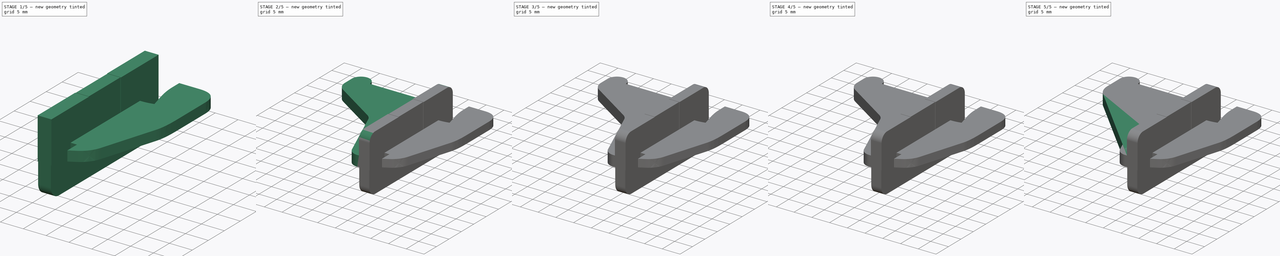
[diagram: build sequence overview — one tinted view per stage of 5, left to right]
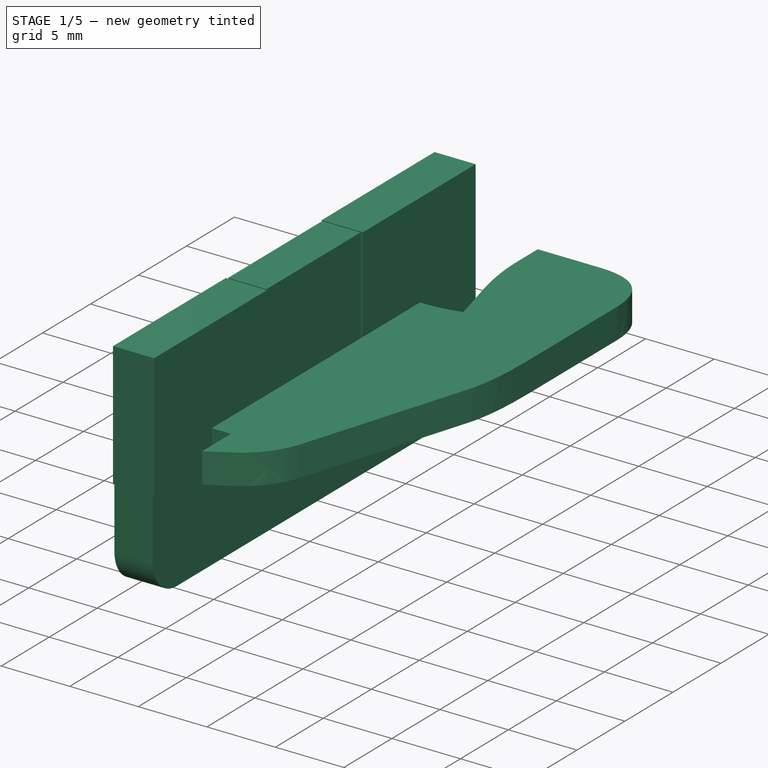
[diagram: stage 1 of 5 — iso view after this stage's code; geometry added in this stage tinted green]
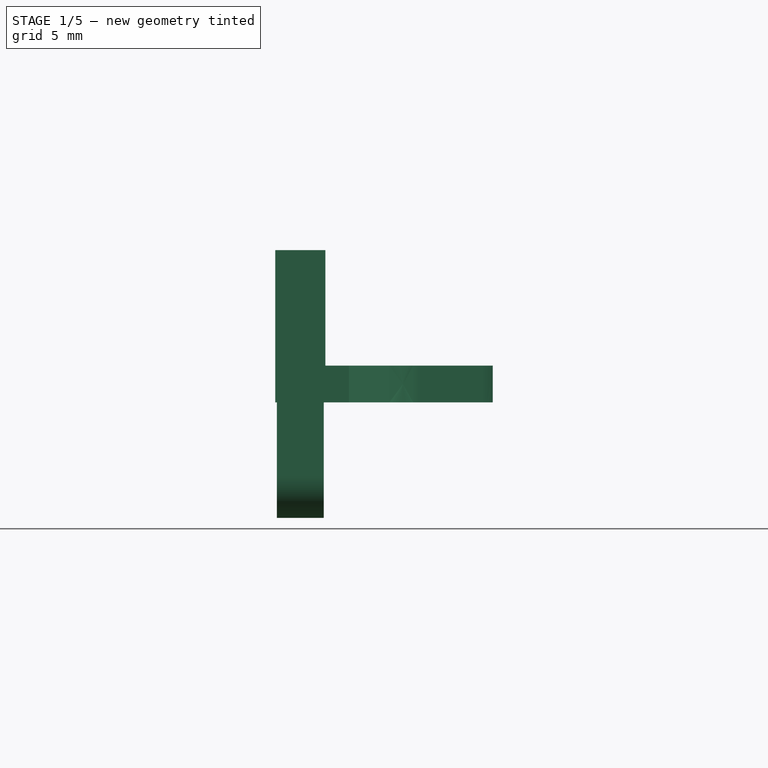
[diagram: stage 1 of 5 — front view after this stage's code; geometry added in this stage tinted green]
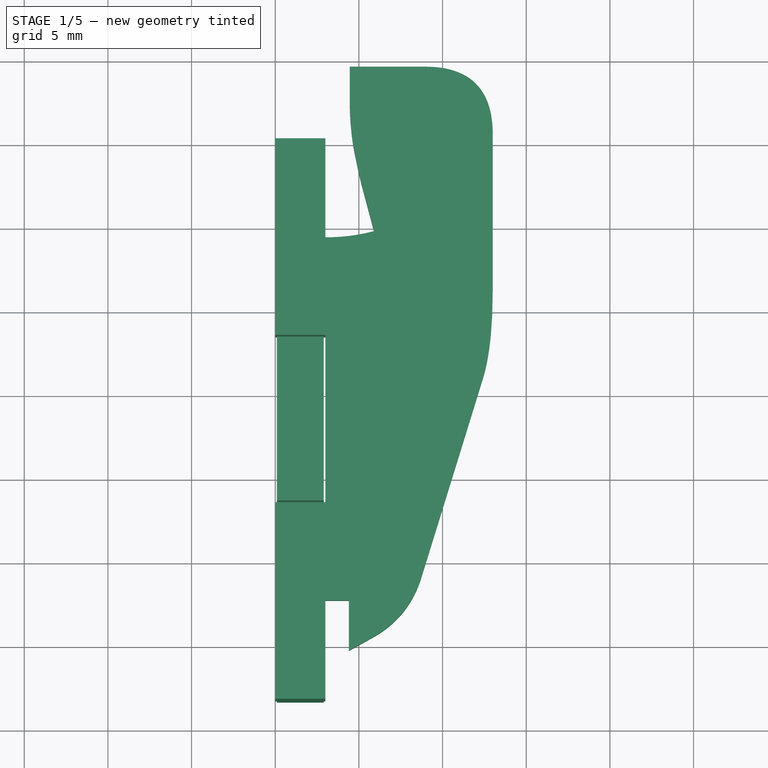
[diagram: stage 1 of 5 — top view after this stage's code; geometry added in this stage tinted green]
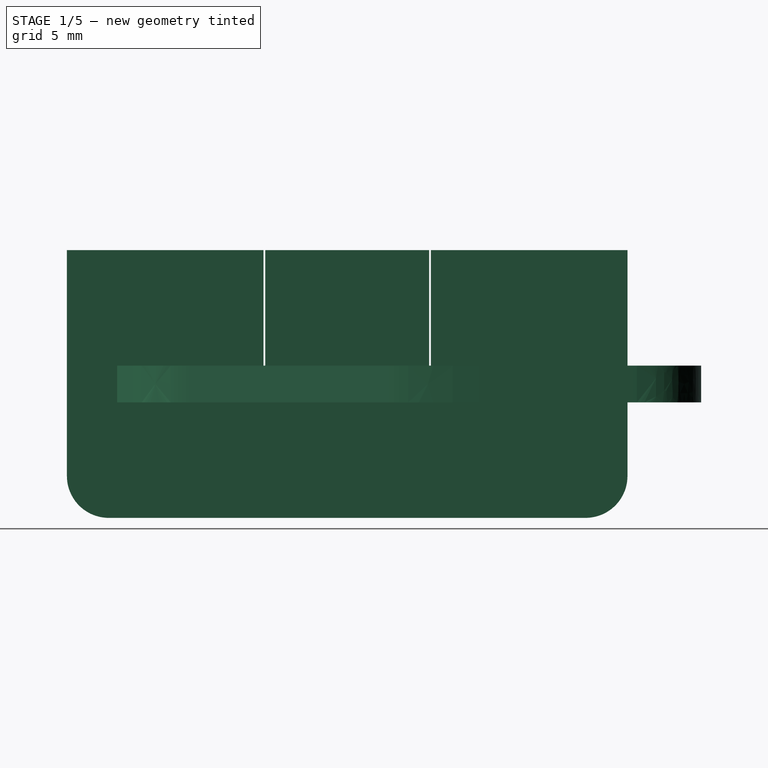
[diagram: stage 1 of 5 — right view after this stage's code; geometry added in this stage tinted green]
FCSTD DOCUMENT  (FreeCAD 0.20R29177 (Git))
Label: Quickhooks
License: All rights reserved
LicenseURL: http://en.wikipedia.org/wiki/All_rights_reserved
objects: Sketcher::SketchObject×10, PartDesign::Pad×10, PartDesign::Fillet×9, PartDesign::Body×4, Spreadsheet::Sheet×1
note: 52 computed .brp shape members not serialized (recipe doc carries the construction recipe); baked Part::Feature solids carry a one-line shape summary decoded from their .brp

FEATURE [PartDesign::Body] Body  label="Heavy"
  Group = -> [Sketch,Pad,Sketch001,Pad001,Fillet,Sketch002,Pad002,Fillet001]
  Origin = -> Origin
  Tip = -> Fillet001
FEATURE [Sketcher::SketchObject] Sketch003  label="Medium Clip Base Pad Sketch"
  FullyConstrained = false
  MapMode = 5
  Support = -> [XY_Plane001]
  sketch-geometry (57):
    g0: LineSegment StartX=0 StartY=5.15 StartZ=0 EndX=3 EndY=5.15 EndZ=0
    g1: LineSegment StartX=3 StartY=5.15 StartZ=0 EndX=3 EndY=-0.65 EndZ=0
    g2: LineSegment StartX=0 StartY=5.15 StartZ=0 EndX=0 EndY=0 EndZ=0
    g3: LineSegment StartX=0 StartY=-28.35 StartZ=0 EndX=3 EndY=-28.35 EndZ=0
    g4: LineSegment StartX=3 StartY=-28.35 StartZ=0 EndX=3 EndY=-22.35 EndZ=0
    g5: LineSegment StartX=3 StartY=-22.35 StartZ=0 EndX=3 EndY=-16.6 EndZ=0
    g6: LineSegment StartX=3 StartY=-0.65 StartZ=0 EndX=3 EndY=-6.6 EndZ=0
    g7: LineSegment StartX=3 StartY=-16.6 StartZ=0 EndX=3 EndY=-6.6 EndZ=0
    g8: LineSegment StartX=3 StartY=-6.6 StartZ=0 EndX=0 EndY=-6.6 EndZ=0
    g9: LineSegment StartX=0 StartY=0 StartZ=0 EndX=0 EndY=-6.6 EndZ=0
    g10: LineSegment StartX=3 StartY=-16.6 StartZ=0 EndX=0 EndY=-16.6 EndZ=0
    g11: LineSegment StartX=0 StartY=-6.6 StartZ=0 EndX=0 EndY=-16.6 EndZ=0
    g12: LineSegment StartX=0 StartY=-16.6 StartZ=0 EndX=0 EndY=-28.35 EndZ=0
    g13: LineSegment StartX=3 StartY=-22.35 StartZ=0 EndX=4.4 EndY=-22.35 EndZ=0
    g14: LineSegment StartX=4.4 StartY=-22.35 StartZ=0 EndX=4.4 EndY=-25.35 EndZ=0
    g15: ArcOfCircle CenterX=3.07082 CenterY=10.3448 CenterZ=0 NormalX=0 NormalY=0 NormalZ=1 AngleXU=0 Radius=10.995 StartAngle=4.70595 EndAngle=4.97263
    g16: LineSegment StartX=4.45 StartY=9.55 StartZ=0 EndX=4.45 EndY=7.45 EndZ=0
    g17: LineSegment StartX=4.45 StartY=9.55 StartZ=0 EndX=8.95 EndY=9.55 EndZ=0
    g18: LineSegment StartX=13 StartY=5.5 StartZ=0 EndX=13 EndY=-3.7 EndZ=0
    g19: LineSegment StartX=5.9 StartY=-0.28 StartZ=0 EndX=5.9 EndY=-0.65 EndZ=0
    g20: LineSegment StartX=3 StartY=-0.65 StartZ=0 EndX=5.9 EndY=-0.65 EndZ=0
    g21-g24: Circle x4 (B-spline internal-alignment scaffolding for g25; pole/knot coordinates omitted)
    g25: BSplineCurve PolesCount=4 KnotsCount=2 Degree=3 IsPeriodic=0
    g26: GeomPoint X=5.9 Y=-0.28 Z=0
    g27: GeomPoint X=4.45 Y=7.45 Z=0
    g28: LineSegment StartX=4.45 StartY=7.45 StartZ=0 EndX=4.45 EndY=4.82028 EndZ=0
    g29: LineSegment StartX=12.4122 StartY=-9.06773 StartZ=0 EndX=8.72 EndY=-21.01 EndZ=0
    g30: Circle CenterX=8.95 CenterY=9.55 CenterZ=0 NormalX=0 NormalY=0 NormalZ=1 AngleXU=0 Radius=1
    g31: Circle CenterX=13 CenterY=9.55 CenterZ=0 NormalX=0 NormalY=0 NormalZ=1 AngleXU=0 Radius=1
    g32: Circle CenterX=13 CenterY=5.5 CenterZ=0 NormalX=0 NormalY=0 NormalZ=1 AngleXU=0 Radius=1
    g33: BSplineCurve PolesCount=3 KnotsCount=2 Degree=2 IsPeriodic=0
    g34: GeomPoint X=8.95 Y=9.55 Z=0
    g35: GeomPoint X=13 Y=5.5 Z=0
    g36: Circle CenterX=13 CenterY=-3.7 CenterZ=0 NormalX=0 NormalY=0 NormalZ=1 AngleXU=0 Radius=1
    g37: Circle CenterX=13 CenterY=-7.16645 CenterZ=0 NormalX=0 NormalY=0 NormalZ=1 AngleXU=0 Radius=1
    g38: Circle CenterX=12.4122 CenterY=-9.06773 CenterZ=0 NormalX=0 NormalY=0 NormalZ=1 AngleXU=0 Radius=1
    g39: BSplineCurve PolesCount=3 KnotsCount=2 Degree=2 IsPeriodic=0
    g40: GeomPoint X=13 Y=-3.7 Z=0
    g41: GeomPoint X=12.4122 Y=-9.06773 Z=0
    g42: LineSegment StartX=4.4 StartY=-25.35 StartZ=0 EndX=5.8162 EndY=-24.5634 EndZ=0
    g43: Circle CenterX=5.8162 CenterY=-24.5634 CenterZ=0 NormalX=0 NormalY=0 NormalZ=1 AngleXU=0 Radius=1
    g44: Circle CenterX=7.99569 CenterY=-23.3528 CenterZ=0 NormalX=0 NormalY=0 NormalZ=1 AngleXU=0 Radius=1
    g45: Circle CenterX=8.72 CenterY=-21.01 CenterZ=0 NormalX=0 NormalY=0 NormalZ=1 AngleXU=0 Radius=1
    g46: BSplineCurve PolesCount=3 KnotsCount=2 Degree=2 IsPeriodic=0
    g47: GeomPoint X=5.8162 Y=-24.5634 Z=0
    g48: GeomPoint X=8.72 Y=-21.01 Z=0
    g49: LineSegment StartX=8.72 StartY=-21.01 StartZ=0 EndX=7.99569 EndY=-23.3528 EndZ=0
    g50: LineSegment StartX=7.99569 StartY=-23.3528 StartZ=0 EndX=5.8162 EndY=-24.5634 EndZ=0
    g51: LineSegment StartX=12.4122 StartY=-9.06773 StartZ=0 EndX=13 EndY=-7.16645 EndZ=0
    g52: LineSegment StartX=13 StartY=-3.7 StartZ=0 EndX=13 EndY=-7.16645 EndZ=0
    g53: LineSegment StartX=8.95 StartY=9.55 StartZ=0 EndX=13 EndY=9.55 EndZ=0
    g54: LineSegment StartX=13 StartY=5.5 StartZ=0 EndX=13 EndY=9.55 EndZ=0
    g55: LineSegment StartX=4.4 StartY=-22.35 StartZ=0 EndX=4.4 EndY=-21.01 EndZ=0
    g56: LineSegment StartX=4.4 StartY=-21.01 StartZ=0 EndX=8.72 EndY=-21.01 EndZ=0
  constraints (134):
    c: PointOnObject(g0,g-2)
    c: Horizontal(g0)
    c: Coincident(g1,g0)
    c: Vertical(g1)
    c: Coincident(g2,g0)
    c: Coincident(g2,g-1)
    c: PointOnObject(g3,g-2)
    c: DistanceY(g2,g2) = 5.15
    c: Horizontal(g3)
    c: Coincident(g4,g3)
    c: Vertical(g4)
    c: Coincident(g5,g4)
    c: Vertical(g5)
    c: Coincident(g6,g1)
    c: Vertical(g6)
    c: Coincident(g7,g5)
    c: Coincident(g7,g6)
    c: Vertical(g7)
    c: Coincident(g8,g7)
    c: PointOnObject(g8,g-2)
    c: Horizontal(g8)
    c: Coincident(g9,g2)
    c: Coincident(g9,g8)
    c: DistanceX(g0,g0) = 3
    c: Coincident(g10,g7)
    c: PointOnObject(g10,g-2)
    c: Horizontal(g10)
    c: Coincident(g11,g8)
    c: Coincident(g11,g10)
    c: Coincident(g12,g10)
    c: Coincident(g12,g3)
    c: DistanceY(g9,g9) = 6.6
    c: DistanceY(g11,g11) = 10
    c: DistanceY(g12,g12) = 11.75
    c: DistanceY(g5,g5) = 5.75
    c: Coincident(g13,g4)
    c: Horizontal(g13)
    c: Coincident(g14,g13)
    c: Vertical(g14)
    c: DistanceY(g1,g0) = 5.8
    c: DistanceX(g13,g13) = 1.4
    c: DistanceY(g14,g14) = 3
    c: Coincident(g15,g1)
    c: Vertical(g16)
    c: Coincident(g17,g16)
    c: Horizontal(g17)
    c: Vertical(g18)
    c: Coincident(g19,g15)
    c: Vertical(g19)
    c: Coincident(g20,g1)
    c: Coincident(g20,g19)
    c: Horizontal(g20)
    c: DistanceX(g20,g20) = 2.9
    c: Weight(g21) = 1
    c: Coincident(g25,g15)
    c: Equal(g21,g22)
    c: Equal(g21,g23)
    c: Equal(g21,g24)
    c: Coincident(g25,g16)
    c: InternalAlignment(g21-g24 -> g25) x4
    c: InternalAlignment(g26,g25)
    c: InternalAlignment(g27,g25)
    c: Coincident(g28,g16)
    c: Coincident(g28,g23)
    c: Vertical(g28)
    c: Weight(g30) = 1
    c: Coincident(g33,g17)
    c: Equal(g30,g31)
    c: Equal(g30,g32)
    c: Coincident(g33,g18)
    c: InternalAlignment(g30,g33)
    c: InternalAlignment(g31,g33)
    c: InternalAlignment(g32,g33)
    c: InternalAlignment(g34,g33)
    c: InternalAlignment(g35,g33)
    c: Weight(g36) = 1
    c: Coincident(g39,g18)
    c: Equal(g36,g37)
    c: Equal(g36,g38)
    c: Coincident(g39,g29)
    c: InternalAlignment(g36,g39)
    c: InternalAlignment(g37,g39)
    c: InternalAlignment(g38,g39)
    c: InternalAlignment(g40,g39)
    c: InternalAlignment(g41,g39)
    c: Coincident(g42,g14)
    c: Weight(g43) = 1
    c: Coincident(g46,g42)
    c: Equal(g43,g44)
    c: Equal(g43,g45)
    c: Coincident(g46,g29)
    c: InternalAlignment(g43,g46)
    c: InternalAlignment(g44,g46)
    c: InternalAlignment(g45,g46)
    c: InternalAlignment(g47,g46)
    c: InternalAlignment(g48,g46)
    c: Coincident(g49,g29)
    c: Coincident(g49,g44)
    c: Coincident(g50,g44)
    c: Coincident(g50,g42)
    c: Parallel(g50,g42)
    c: Parallel(g49,g29)
    c: Angle(g42,g14) = 1.06378
    c: Distance(g42) = 1.62
    c: Coincident(g51,g29)
    c: Coincident(g51,g37)
    c: Coincident(g52,g18)
    c: Coincident(g52,g37)
    c: Vertical(g52)
    c: Parallel(g51,g29)
    c: Coincident(g53,g17)
    c: Coincident(g53,g31)
    c: Horizontal(g53)
    c: Coincident(g54,g18)
    c: Coincident(g54,g31)
    c: Vertical(g54)
    c: DistanceY(g16,g16) = 2.1
    c: DistanceX(g17,g17) = 4.5
    c: DistanceX(g17,g31) = 4.05
    c: DistanceX(g0,g16) = 1.45
    c: DistanceY(g19,g19) = 0.37
    c: Equal(g54,g53)
    c: DistanceY(g0,g16) = 2.3
    c: Diameter(g15) = 21.99
    c: DistanceY(g18,g18) = 9.2
    c: Distance(g29) = 12.5
    c: Coincident(g55,g13)
    c: Vertical(g55)
    c: Coincident(g56,g55)
    c: Coincident(g56,g29)
    c: Horizontal(g56)
    c: DistanceX(g56,g56) = 4.32
    c: DistanceY(g55,g55) = 1.34
    c: Angle(g29,g56) = 1.87064
FEATURE [PartDesign::Pad] Pad003  label="Medium Clip Base Pad"
  Direction = (0,0,1)
  Length = 2.2
  Length2 = 10
  Profile = -> Sketch003
  ReferenceAxis = -> Sketch003 [N_Axis]
  Type = 0
FEATURE [Sketcher::SketchObject] Sketch004  label="Medium Clip Top Pad Sketch"
  ExternalGeometry = -> [Sketch003]
  FullyConstrained = true
  MapMode = 5
  Placement = pos=(0,0,2.2) rot=(0,0,1;0rad)
  Support = -> [Pad003]
  sketch-geometry (8):
    g0: LineSegment StartX=3 StartY=-28.35 StartZ=0 EndX=0 EndY=-28.35 EndZ=0
    g1: LineSegment StartX=0 StartY=-28.35 StartZ=0 EndX=0 EndY=-16.6 EndZ=0
    g2: LineSegment StartX=0 StartY=-16.6 StartZ=0 EndX=3 EndY=-16.6 EndZ=0
    g3: LineSegment StartX=3 StartY=-16.6 StartZ=0 EndX=3 EndY=-28.35 EndZ=0
    g4: LineSegment StartX=3 StartY=-6.6 StartZ=0 EndX=0 EndY=-6.6 EndZ=0
    g5: LineSegment StartX=0 StartY=-6.6 StartZ=0 EndX=0 EndY=5.15 EndZ=0
    g6: LineSegment StartX=0 StartY=5.15 StartZ=0 EndX=3 EndY=5.15 EndZ=0
    g7: LineSegment StartX=3 StartY=5.15 StartZ=0 EndX=3 EndY=-6.6 EndZ=0
  constraints (20):
    c: Coincident(g0,g1)
    c: Coincident(g1,g2)
    c: Coincident(g2,g3)
    c: Coincident(g3,g0)
    c: Horizontal(g0)
    c: Horizontal(g2)
    c: Vertical(g1)
    c: Vertical(g3)
    c: Coincident(g0,g-6)
    c: Coincident(g1,g-5)
    c: Coincident(g4,g5)
    c: Coincident(g5,g6)
    c: Coincident(g6,g7)
    c: Coincident(g7,g4)
    c: Horizontal(g4)
    c: Horizontal(g6)
    c: Vertical(g5)
    c: Vertical(g7)
    c: Coincident(g4,g-3)
    c: Coincident(g5,g-4)
FEATURE [PartDesign::Pad] Pad004  label="Medium Clip Top Pad"
  BaseFeature = -> Pad003
  Direction = (0,0,1)
  Length = 6.9
  Length2 = 10
  Profile = -> Sketch004
  ReferenceAxis = -> Sketch004 [N_Axis]
  Type = 0
FEATURE [PartDesign::Body] Body001  label="Medium"
  Group = -> [Sketch003,Pad003,Sketch004,Pad004,Fillet002,Sketch005,Pad005,Fillet007,Fillet008]
  Origin = -> Origin001
  Tip = -> Fillet008
FEATURE [Sketcher::SketchObject] Sketch009  label="Retainer Body Sketch"
  FullyConstrained = true
  MapMode = 5
  Placement = pos=(0,0,0) rot=(0.57735,0.57735,0.57735;2.0944rad)
  Support = -> [YZ_Plane003]
  sketch-geometry (8):
    g0: LineSegment StartX=-28.35 StartY=0 StartZ=0 EndX=-28.35 EndY=-6.9 EndZ=0
    g1: LineSegment StartX=-28.35 StartY=-6.9 StartZ=0 EndX=5.15 EndY=-6.9 EndZ=0
    g2: LineSegment StartX=5.15 StartY=0 StartZ=0 EndX=5.15 EndY=-6.9 EndZ=0
    g3: LineSegment StartX=-28.35 StartY=0 StartZ=0 EndX=-16.5 EndY=0 EndZ=0
    g4: LineSegment StartX=-6.7 StartY=0 StartZ=0 EndX=5.15 EndY=0 EndZ=0
    g5: LineSegment StartX=-16.5 StartY=0 StartZ=0 EndX=-16.5 EndY=9.1 EndZ=0
    g6: LineSegment StartX=-16.5 StartY=9.1 StartZ=0 EndX=-6.7 EndY=9.1 EndZ=0
    g7: LineSegment StartX=-6.7 StartY=9.1 StartZ=0 EndX=-6.7 EndY=0 EndZ=0
  constraints (24):
    c: PointOnObject(g0,g-1)
    c: Vertical(g0)
    c: Coincident(g1,g0)
    c: Horizontal(g1)
    c: PointOnObject(g2,g-1)
    c: Coincident(g2,g1)
    c: Vertical(g2)
    c: DistanceX(g1,g1) = 33.5
    c: DistanceX(g-1,g2) = 5.15
    c: DistanceY(g0,g0) = 6.9
    c: Coincident(g3,g0)
    c: PointOnObject(g3,g-1)
    c: PointOnObject(g4,g-1)
    c: Coincident(g4,g2)
    c: Equal(g3,g4)
    c: Coincident(g5,g3)
    c: Vertical(g5)
    c: Coincident(g6,g5)
    c: Horizontal(g6)
    c: Coincident(g7,g6)
    c: Coincident(g7,g4)
    c: Vertical(g7)
    c: DistanceX(g6,g6) = 9.8
    c: DistanceY(g5,g5) = 9.1
FEATURE [PartDesign::Pad] Pad009  label="Retainer Body"
  Direction = (1,-2e-16,3e-16)
  Length = 2.9
  Length2 = -0.1
  Placement = pos=(0,0,0) rot=(0.57735,0.57735,0.57735;2.0944rad)
  Profile = -> Sketch009
  ReferenceAxis = -> Sketch009 [N_Axis]
  Type = 4
FEATURE [PartDesign::Fillet] Fillet009  label="Retainer Body Fillet"
  Base = -> Pad009 [Edge2,Edge5]
  BaseFeature = -> Pad009
  Placement = pos=(0,0,0) rot=(0.57735,0.57735,0.57735;2.0944rad)
  Radius = 2.5
  SupportTransform = false
  UseAllEdges = false
FEATURE [PartDesign::Body] Body003  label="Retainer"
  Group = -> [Sketch009,Pad009,Fillet009]
  Origin = -> Origin003
  Tip = -> Fillet009
FEATURE [Spreadsheet::Sheet] Spreadsheet  label="$params"
  cells = A1=label; B1=value; C1=description; A2=ext_length; B2(ext_length)=20.4; C2=How far each quickhook should extend from it's base (in mm); A3=ext_hang_diam; B3(ext_hang_diam)=5; C3=The diameter of the quickhook hanging extrusion (in mm)
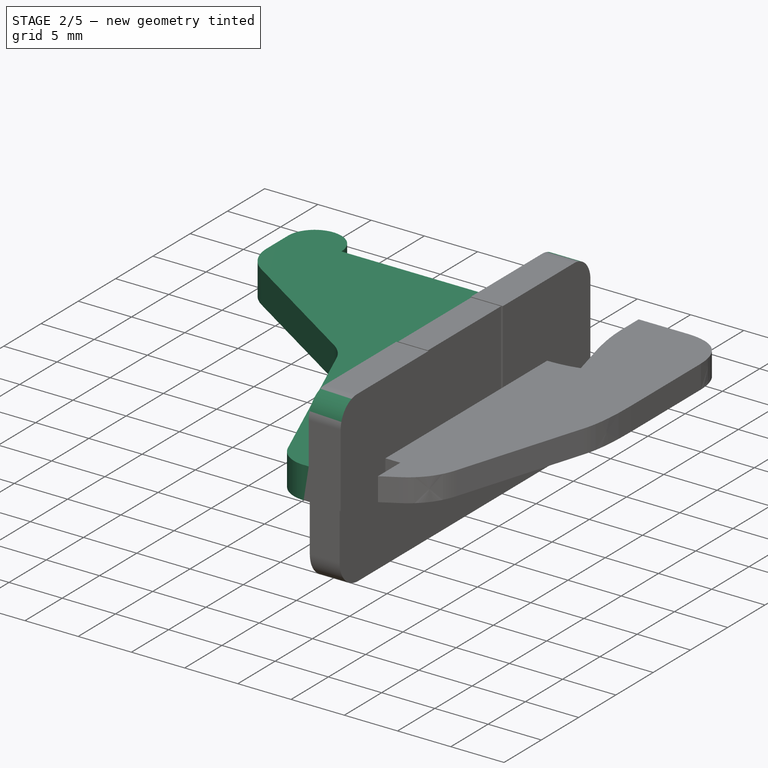
[diagram: stage 2 of 5 — iso view after this stage's code; geometry added in this stage tinted green]
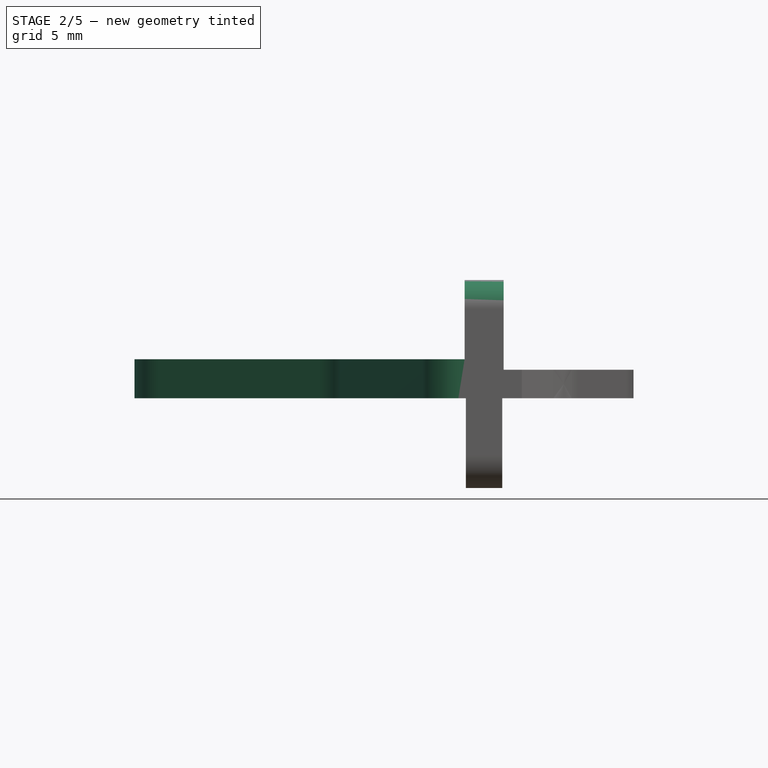
[diagram: stage 2 of 5 — front view after this stage's code; geometry added in this stage tinted green]
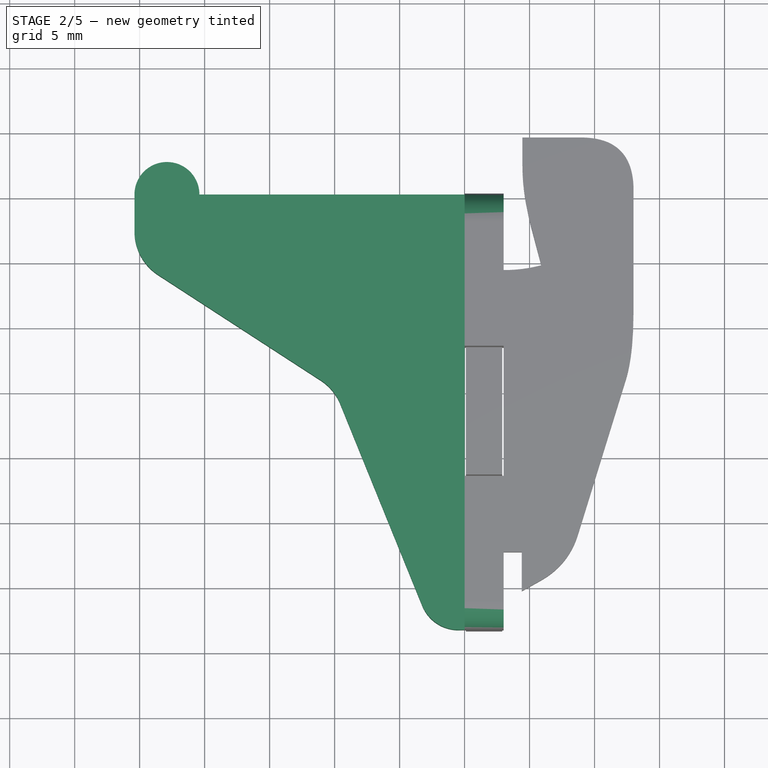
[diagram: stage 2 of 5 — top view after this stage's code; geometry added in this stage tinted green]
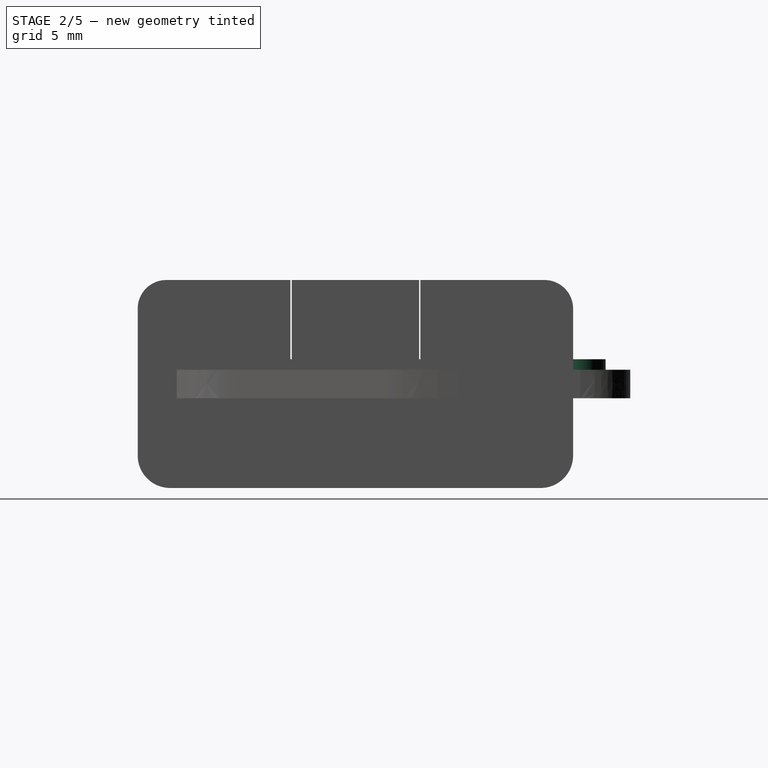
[diagram: stage 2 of 5 — right view after this stage's code; geometry added in this stage tinted green]
FEATURE [PartDesign::Fillet] Fillet002  label="Medium Clip Top Pad Fillet"
  Base = -> Pad004 [Edge84,Edge81]
  BaseFeature = -> Pad004
  Radius = 2.2
  SupportTransform = false
  UseAllEdges = false
FEATURE [Sketcher::SketchObject] Sketch005  label="Medium Clip Ext Pad"
  ExternalGeometry = -> [Sketch003]
  FullyConstrained = true
  MapMode = 5
  Support = -> [XY_Plane001]
  expr: Constraints[12] = <<$params>>.ext_hang_diam
  expr: Constraints[4] = <<$params>>.ext_length
  sketch-geometry (11):
    g0: LineSegment StartX=0 StartY=5.15 StartZ=0 EndX=-20.4 EndY=5.15 EndZ=0
    g1: LineSegment StartX=-20.4 StartY=5.15 StartZ=0 EndX=-20.4 EndY=-3.09309 EndZ=0
    g2: ArcOfCircle CenterX=-22.9 CenterY=5.15 CenterZ=0 NormalX=0 NormalY=0 NormalZ=1 AngleXU=0 Radius=2.5 StartAngle=0 EndAngle=3.14159
    g3: LineSegment StartX=-25.4 StartY=5.15 StartZ=0 EndX=-22.9 EndY=5.15 EndZ=0
    g4: LineSegment StartX=-22.9 StartY=5.15 StartZ=0 EndX=-20.4 EndY=5.15 EndZ=0
    g5: LineSegment StartX=-25.4 StartY=5.15 StartZ=0 EndX=-25.4 EndY=0.15 EndZ=0
    g6: LineSegment StartX=-20.4 StartY=-3.09309 StartZ=0 EndX=-25.4 EndY=0.15 EndZ=0
    g7: LineSegment StartX=0 StartY=5.15 StartZ=0 EndX=0 EndY=-28.35 EndZ=0
    g8: LineSegment StartX=0 StartY=-28.35 StartZ=0 EndX=-2.5 EndY=-28.35 EndZ=0
    g9: LineSegment StartX=-2.5 StartY=-28.35 StartZ=0 EndX=-10.0277 EndY=-9.82074 EndZ=0
    g10: LineSegment StartX=-10.0277 StartY=-9.82074 StartZ=0 EndX=-20.4 EndY=-3.09309 EndZ=0
  constraints (29):
    c: Coincident(g0,g-3)
    c: Horizontal(g0)
    c: Coincident(g1,g0)
    c: Vertical(g1)
    c: DistanceX(g0,g0) = 20.4
    c: Coincident(g2,g0)
    c: Coincident(g3,g2)
    c: Coincident(g3,g2)
    c: Horizontal(g3)
    c: Coincident(g4,g2)
    c: Coincident(g4,g0)
    c: Horizontal(g4)
    c: DistanceX(g2,g0) = 5
    c: Coincident(g5,g2)
    c: Vertical(g5)
    c: Coincident(g6,g1)
    c: Coincident(g5,g6)
    c: DistanceY(g5,g5) = 5
    c: Coincident(g7,g0)
    c: Coincident(g8,g7)
    c: Horizontal(g8)
    c: Coincident(g7,g-4)
    c: Coincident(g9,g8)
    c: Coincident(g10,g9)
    c: Coincident(g10,g6)
    c: DistanceX(g8,g8) = 2.5
    c: Angle(g8,g9) = 1.95669
    c: Distance(g9) = 20
    c: Parallel(g10,g6)
FEATURE [PartDesign::Pad] Pad005  label="Medium Clip Ext"
  BaseFeature = -> Fillet002
  Direction = (0,0,1)
  Length = 3
  Length2 = 10
  Profile = -> Sketch005
  ReferenceAxis = -> Sketch005 [N_Axis]
  Refine = true
  Type = 0
FEATURE [PartDesign::Body] Body002  label="Light"
  Group = -> [Sketch006,Pad006,Sketch007,Pad007,Fillet004,Sketch008,Pad008,Fillet005,Fillet006]
  Origin = -> Origin002
  Tip = -> Fillet006
FEATURE [PartDesign::Fillet] Fillet007  label="Medium Clip Ext Fillet 1"
  Base = -> Pad005 [Edge25,Edge28]
  BaseFeature = -> Pad005
  Radius = 4
  SupportTransform = false
  UseAllEdges = false
FEATURE [PartDesign::Fillet] Fillet008  label="Medium Clip Ext Fillet 2"
  Base = -> Fillet007 [Edge31]
  BaseFeature = -> Fillet007
  Radius = 3
  SupportTransform = false
  UseAllEdges = false
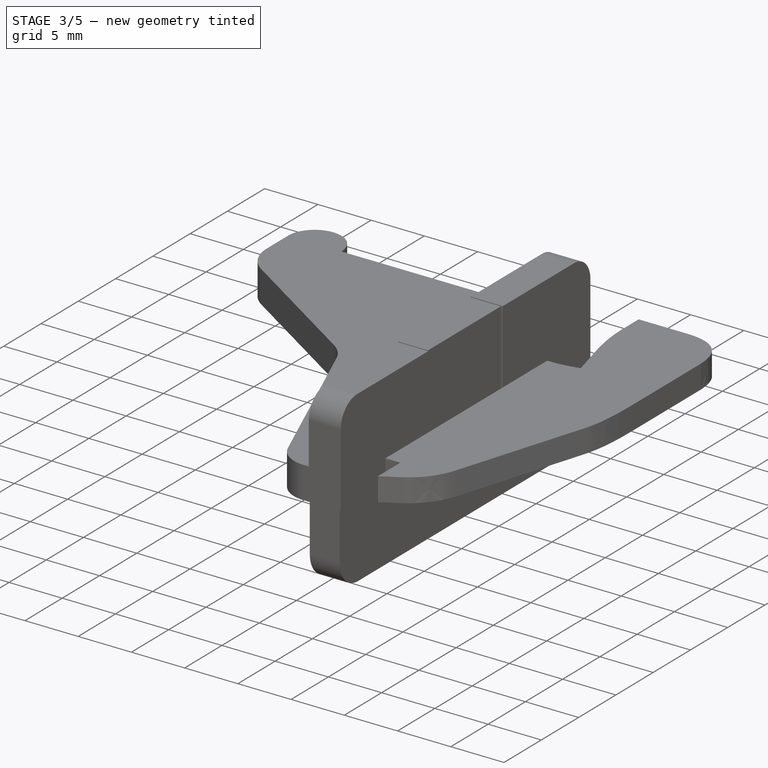
[diagram: stage 3 of 5 — iso view after this stage's code; geometry added in this stage tinted green]
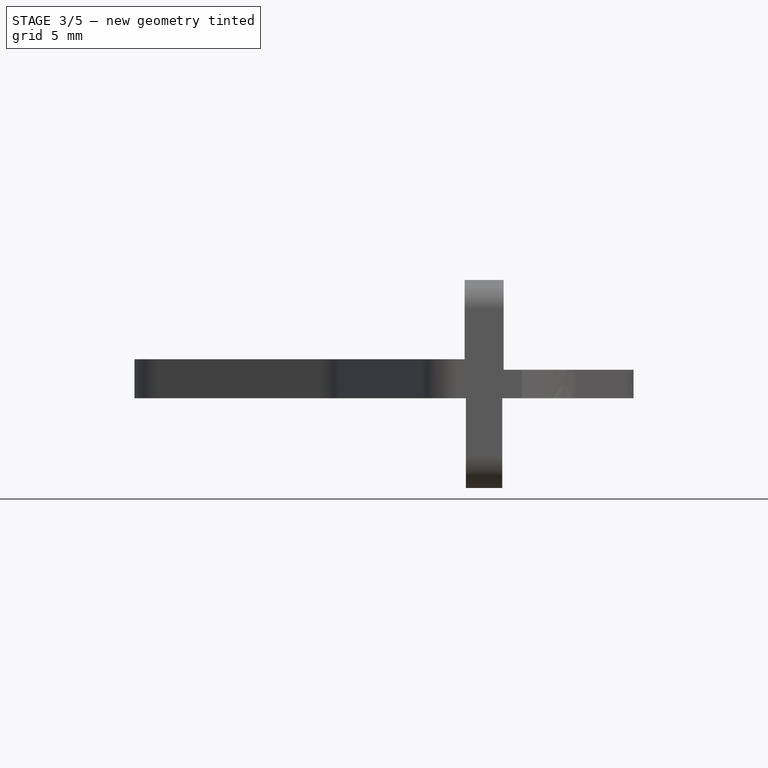
[diagram: stage 3 of 5 — front view after this stage's code; geometry added in this stage tinted green]
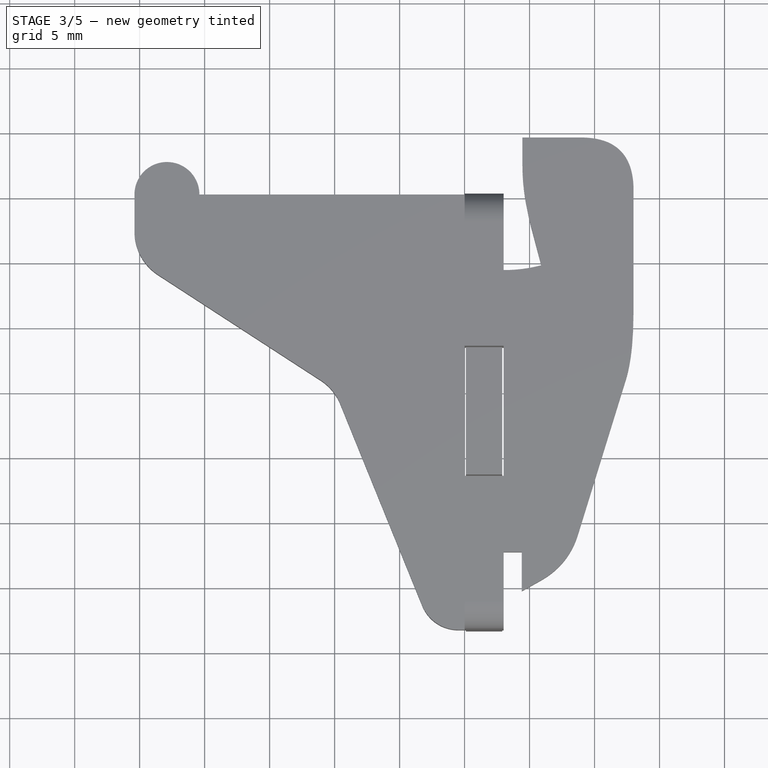
[diagram: stage 3 of 5 — top view after this stage's code; geometry added in this stage tinted green]
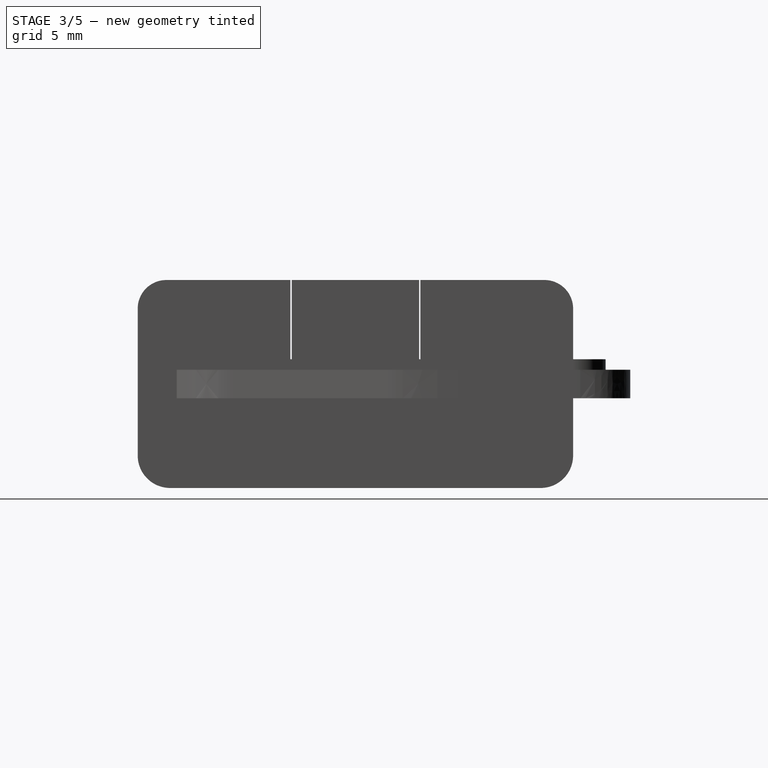
[diagram: stage 3 of 5 — right view after this stage's code; geometry added in this stage tinted green]
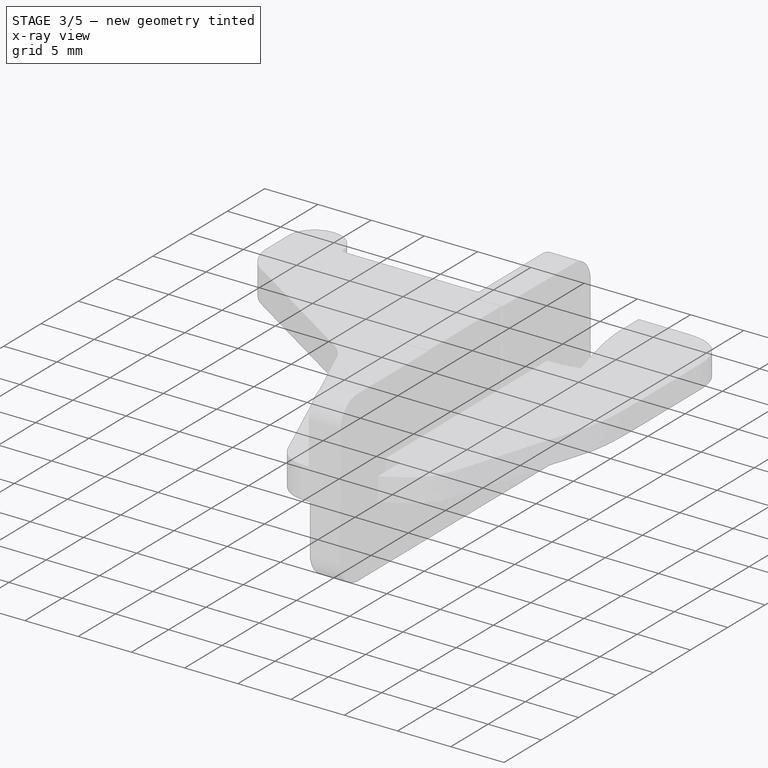
[diagram: stage 3 of 5 — x-ray composite at the iso view; earlier geometry ghosted, this stage's added geometry solid]
FEATURE [Sketcher::SketchObject] Sketch006  label="Light Clip Base Pad Sketch"
  FullyConstrained = false
  MapMode = 5
  Support = -> [XY_Plane002]
  sketch-geometry (57):
    g0: LineSegment StartX=0 StartY=5.15 StartZ=0 EndX=3 EndY=5.15 EndZ=0
    g1: LineSegment StartX=3 StartY=5.15 StartZ=0 EndX=3 EndY=-0.65 EndZ=0
    g2: LineSegment StartX=0 StartY=5.15 StartZ=0 EndX=0 EndY=0 EndZ=0
    g3: LineSegment StartX=0 StartY=-28.35 StartZ=0 EndX=3 EndY=-28.35 EndZ=0
    g4: LineSegment StartX=3 StartY=-28.35 StartZ=0 EndX=3 EndY=-22.35 EndZ=0
    g5: LineSegment StartX=3 StartY=-22.35 StartZ=0 EndX=3 EndY=-16.6 EndZ=0
    g6: LineSegment StartX=3 StartY=-0.65 StartZ=0 EndX=3 EndY=-6.6 EndZ=0
    g7: LineSegment StartX=3 StartY=-16.6 StartZ=0 EndX=3 EndY=-6.6 EndZ=0
    g8: LineSegment StartX=3 StartY=-6.6 StartZ=0 EndX=0 EndY=-6.6 EndZ=0
    g9: LineSegment StartX=0 StartY=0 StartZ=0 EndX=0 EndY=-6.6 EndZ=0
    g10: LineSegment StartX=3 StartY=-16.6 StartZ=0 EndX=0 EndY=-16.6 EndZ=0
    g11: LineSegment StartX=0 StartY=-6.6 StartZ=0 EndX=0 EndY=-16.6 EndZ=0
    g12: LineSegment StartX=0 StartY=-16.6 StartZ=0 EndX=0 EndY=-28.35 EndZ=0
    g13: LineSegment StartX=3 StartY=-22.35 StartZ=0 EndX=4.4 EndY=-22.35 EndZ=0
    g14: LineSegment StartX=4.4 StartY=-22.35 StartZ=0 EndX=4.4 EndY=-25.35 EndZ=0
    g15: ArcOfCircle CenterX=3.07082 CenterY=10.3448 CenterZ=0 NormalX=0 NormalY=0 NormalZ=1 AngleXU=0 Radius=10.995 StartAngle=4.70595 EndAngle=4.97263
    g16: LineSegment StartX=4.45 StartY=9.55 StartZ=0 EndX=4.45 EndY=7.45 EndZ=0
    g17: LineSegment StartX=4.45 StartY=9.55 StartZ=0 EndX=8.95 EndY=9.55 EndZ=0
    g18: LineSegment StartX=13 StartY=5.5 StartZ=0 EndX=13 EndY=-3.7 EndZ=0
    g19: LineSegment StartX=5.9 StartY=-0.28 StartZ=0 EndX=5.9 EndY=-0.65 EndZ=0
    g20: LineSegment StartX=3 StartY=-0.65 StartZ=0 EndX=5.9 EndY=-0.65 EndZ=0
    g21-g24: Circle x4 (B-spline internal-alignment scaffolding for g25; pole/knot coordinates omitted)
    g25: BSplineCurve PolesCount=4 KnotsCount=2 Degree=3 IsPeriodic=0
    g26: GeomPoint X=5.9 Y=-0.28 Z=0
    g27: GeomPoint X=4.45 Y=7.45 Z=0
    g28: LineSegment StartX=4.45 StartY=7.45 StartZ=0 EndX=4.45 EndY=4.82028 EndZ=0
    g29: LineSegment StartX=12.4122 StartY=-9.06773 StartZ=0 EndX=8.72 EndY=-21.01 EndZ=0
    g30: Circle CenterX=8.95 CenterY=9.55 CenterZ=0 NormalX=0 NormalY=0 NormalZ=1 AngleXU=0 Radius=1
    g31: Circle CenterX=13 CenterY=9.55 CenterZ=0 NormalX=0 NormalY=0 NormalZ=1 AngleXU=0 Radius=1
    g32: Circle CenterX=13 CenterY=5.5 CenterZ=0 NormalX=0 NormalY=0 NormalZ=1 AngleXU=0 Radius=1
    g33: BSplineCurve PolesCount=3 KnotsCount=2 Degree=2 IsPeriodic=0
    g34: GeomPoint X=8.95 Y=9.55 Z=0
    g35: GeomPoint X=13 Y=5.5 Z=0
    g36: Circle CenterX=13 CenterY=-3.7 CenterZ=0 NormalX=0 NormalY=0 NormalZ=1 AngleXU=0 Radius=1
    g37: Circle CenterX=13 CenterY=-7.16645 CenterZ=0 NormalX=0 NormalY=0 NormalZ=1 AngleXU=0 Radius=1
    g38: Circle CenterX=12.4122 CenterY=-9.06773 CenterZ=0 NormalX=0 NormalY=0 NormalZ=1 AngleXU=0 Radius=1
    g39: BSplineCurve PolesCount=3 KnotsCount=2 Degree=2 IsPeriodic=0
    g40: GeomPoint X=13 Y=-3.7 Z=0
    g41: GeomPoint X=12.4122 Y=-9.06773 Z=0
    g42: LineSegment StartX=4.4 StartY=-25.35 StartZ=0 EndX=5.8162 EndY=-24.5634 EndZ=0
    g43: Circle CenterX=5.8162 CenterY=-24.5634 CenterZ=0 NormalX=0 NormalY=0 NormalZ=1 AngleXU=0 Radius=1
    g44: Circle CenterX=7.99569 CenterY=-23.3528 CenterZ=0 NormalX=0 NormalY=0 NormalZ=1 AngleXU=0 Radius=1
    g45: Circle CenterX=8.72 CenterY=-21.01 CenterZ=0 NormalX=0 NormalY=0 NormalZ=1 AngleXU=0 Radius=1
    g46: BSplineCurve PolesCount=3 KnotsCount=2 Degree=2 IsPeriodic=0
    g47: GeomPoint X=5.8162 Y=-24.5634 Z=0
    g48: GeomPoint X=8.72 Y=-21.01 Z=0
    g49: LineSegment StartX=8.72 StartY=-21.01 StartZ=0 EndX=7.99569 EndY=-23.3528 EndZ=0
    g50: LineSegment StartX=7.99569 StartY=-23.3528 StartZ=0 EndX=5.8162 EndY=-24.5634 EndZ=0
    g51: LineSegment StartX=12.4122 StartY=-9.06773 StartZ=0 EndX=13 EndY=-7.16645 EndZ=0
    g52: LineSegment StartX=13 StartY=-3.7 StartZ=0 EndX=13 EndY=-7.16645 EndZ=0
    g53: LineSegment StartX=8.95 StartY=9.55 StartZ=0 EndX=13 EndY=9.55 EndZ=0
    g54: LineSegment StartX=13 StartY=5.5 StartZ=0 EndX=13 EndY=9.55 EndZ=0
    g55: LineSegment StartX=4.4 StartY=-22.35 StartZ=0 EndX=4.4 EndY=-21.01 EndZ=0
    g56: LineSegment StartX=4.4 StartY=-21.01 StartZ=0 EndX=8.72 EndY=-21.01 EndZ=0
  constraints (134):
    c: PointOnObject(g0,g-2)
    c: Horizontal(g0)
    c: Coincident(g1,g0)
    c: Vertical(g1)
    c: Coincident(g2,g0)
    c: Coincident(g2,g-1)
    c: PointOnObject(g3,g-2)
    c: DistanceY(g2,g2) = 5.15
    c: Horizontal(g3)
    c: Coincident(g4,g3)
    c: Vertical(g4)
    c: Coincident(g5,g4)
    c: Vertical(g5)
    c: Coincident(g6,g1)
    c: Vertical(g6)
    c: Coincident(g7,g5)
    c: Coincident(g7,g6)
    c: Vertical(g7)
    c: Coincident(g8,g7)
    c: PointOnObject(g8,g-2)
    c: Horizontal(g8)
    c: Coincident(g9,g2)
    c: Coincident(g9,g8)
    c: DistanceX(g0,g0) = 3
    c: Coincident(g10,g7)
    c: PointOnObject(g10,g-2)
    c: Horizontal(g10)
    c: Coincident(g11,g8)
    c: Coincident(g11,g10)
    c: Coincident(g12,g10)
    c: Coincident(g12,g3)
    c: DistanceY(g9,g9) = 6.6
    c: DistanceY(g11,g11) = 10
    c: DistanceY(g12,g12) = 11.75
    c: DistanceY(g5,g5) = 5.75
    c: Coincident(g13,g4)
    c: Horizontal(g13)
    c: Coincident(g14,g13)
    c: Vertical(g14)
    c: DistanceY(g1,g0) = 5.8
    c: DistanceX(g13,g13) = 1.4
    c: DistanceY(g14,g14) = 3
    c: Coincident(g15,g1)
    c: Vertical(g16)
    c: Coincident(g17,g16)
    c: Horizontal(g17)
    c: Vertical(g18)
    c: Coincident(g19,g15)
    c: Vertical(g19)
    c: Coincident(g20,g1)
    c: Coincident(g20,g19)
    c: Horizontal(g20)
    c: DistanceX(g20,g20) = 2.9
    c: Weight(g21) = 1
    c: Coincident(g25,g15)
    c: Equal(g21,g22)
    c: Equal(g21,g23)
    c: Equal(g21,g24)
    c: Coincident(g25,g16)
    c: InternalAlignment(g21-g24 -> g25) x4
    c: InternalAlignment(g26,g25)
    c: InternalAlignment(g27,g25)
    c: Coincident(g28,g16)
    c: Coincident(g28,g23)
    c: Vertical(g28)
    c: Weight(g30) = 1
    c: Coincident(g33,g17)
    c: Equal(g30,g31)
    c: Equal(g30,g32)
    c: Coincident(g33,g18)
    c: InternalAlignment(g30,g33)
    c: InternalAlignment(g31,g33)
    c: InternalAlignment(g32,g33)
    c: InternalAlignment(g34,g33)
    c: InternalAlignment(g35,g33)
    c: Weight(g36) = 1
    c: Coincident(g39,g18)
    c: Equal(g36,g37)
    c: Equal(g36,g38)
    c: Coincident(g39,g29)
    c: InternalAlignment(g36,g39)
    c: InternalAlignment(g37,g39)
    c: InternalAlignment(g38,g39)
    c: InternalAlignment(g40,g39)
    c: InternalAlignment(g41,g39)
    c: Coincident(g42,g14)
    c: Weight(g43) = 1
    c: Coincident(g46,g42)
    c: Equal(g43,g44)
    c: Equal(g43,g45)
    c: Coincident(g46,g29)
    c: InternalAlignment(g43,g46)
    c: InternalAlignment(g44,g46)
    c: InternalAlignment(g45,g46)
    c: InternalAlignment(g47,g46)
    c: InternalAlignment(g48,g46)
    c: Coincident(g49,g29)
    c: Coincident(g49,g44)
    c: Coincident(g50,g44)
    c: Coincident(g50,g42)
    c: Parallel(g50,g42)
    c: Parallel(g49,g29)
    c: Angle(g42,g14) = 1.06378
    c: Distance(g42) = 1.62
    c: Coincident(g51,g29)
    c: Coincident(g51,g37)
    c: Coincident(g52,g18)
    c: Coincident(g52,g37)
    c: Vertical(g52)
    c: Parallel(g51,g29)
    c: Coincident(g53,g17)
    c: Coincident(g53,g31)
    c: Horizontal(g53)
    c: Coincident(g54,g18)
    c: Coincident(g54,g31)
    c: Vertical(g54)
    c: DistanceY(g16,g16) = 2.1
    c: DistanceX(g17,g17) = 4.5
    c: DistanceX(g17,g31) = 4.05
    c: DistanceX(g0,g16) = 1.45
    c: DistanceY(g19,g19) = 0.37
    c: Equal(g54,g53)
    c: DistanceY(g0,g16) = 2.3
    c: Diameter(g15) = 21.99
    c: DistanceY(g18,g18) = 9.2
    c: Distance(g29) = 12.5
    c: Coincident(g55,g13)
    c: Vertical(g55)
    c: Coincident(g56,g55)
    c: Coincident(g56,g29)
    c: Horizontal(g56)
    c: DistanceX(g56,g56) = 4.32
    c: DistanceY(g55,g55) = 1.34
    c: Angle(g29,g56) = 1.87064
FEATURE [PartDesign::Pad] Pad006  label="Light Clip Base Pad"
  Direction = (0,0,1)
  Length = 2.2
  Length2 = 10
  Profile = -> Sketch006
  ReferenceAxis = -> Sketch006 [N_Axis]
  Type = 0
FEATURE [Sketcher::SketchObject] Sketch007  label="Light Clip Top Pad Sketch"
  ExternalGeometry = -> [Sketch006]
  FullyConstrained = true
  MapMode = 5
  Placement = pos=(0,0,2.2) rot=(0,0,1;0rad)
  Support = -> [Pad006]
  sketch-geometry (8):
    g0: LineSegment StartX=3 StartY=-28.35 StartZ=0 EndX=0 EndY=-28.35 EndZ=0
    g1: LineSegment StartX=0 StartY=-28.35 StartZ=0 EndX=0 EndY=-16.6 EndZ=0
    g2: LineSegment StartX=0 StartY=-16.6 StartZ=0 EndX=3 EndY=-16.6 EndZ=0
    g3: LineSegment StartX=3 StartY=-16.6 StartZ=0 EndX=3 EndY=-28.35 EndZ=0
    g4: LineSegment StartX=3 StartY=-6.6 StartZ=0 EndX=0 EndY=-6.6 EndZ=0
    g5: LineSegment StartX=0 StartY=-6.6 StartZ=0 EndX=0 EndY=5.15 EndZ=0
    g6: LineSegment StartX=0 StartY=5.15 StartZ=0 EndX=3 EndY=5.15 EndZ=0
    g7: LineSegment StartX=3 StartY=5.15 StartZ=0 EndX=3 EndY=-6.6 EndZ=0
  constraints (20):
    c: Coincident(g0,g1)
    c: Coincident(g1,g2)
    c: Coincident(g2,g3)
    c: Coincident(g3,g0)
    c: Horizontal(g0)
    c: Horizontal(g2)
    c: Vertical(g1)
    c: Vertical(g3)
    c: Coincident(g0,g-6)
    c: Coincident(g1,g-5)
    c: Coincident(g4,g5)
    c: Coincident(g5,g6)
    c: Coincident(g6,g7)
    c: Coincident(g7,g4)
    c: Horizontal(g4)
    c: Horizontal(g6)
    c: Vertical(g5)
    c: Vertical(g7)
    c: Coincident(g4,g-3)
    c: Coincident(g5,g-4)
FEATURE [PartDesign::Pad] Pad007  label="Light Clip Top Pad"
  BaseFeature = -> Pad006
  Direction = (0,0,1)
  Length = 6.9
  Length2 = 10
  Profile = -> Sketch007
  ReferenceAxis = -> Sketch007 [N_Axis]
  Type = 0
FEATURE [PartDesign::Fillet] Fillet004  label="Light Clip Top Pad Fillet"
  Base = -> Pad007 [Edge84,Edge81]
  BaseFeature = -> Pad007
  Radius = 2.2
  SupportTransform = false
  UseAllEdges = false
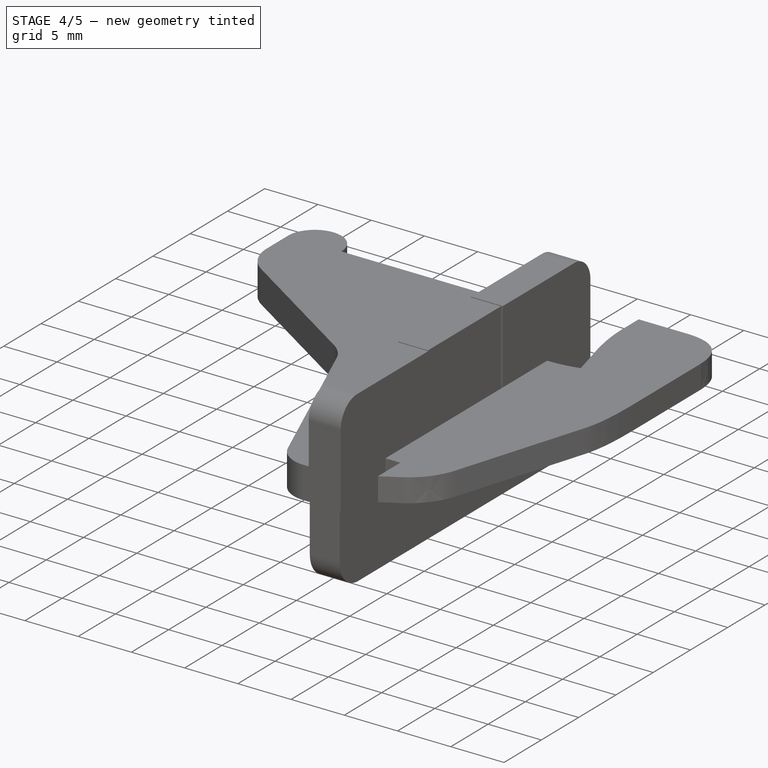
[diagram: stage 4 of 5 — iso view after this stage's code; geometry added in this stage tinted green]
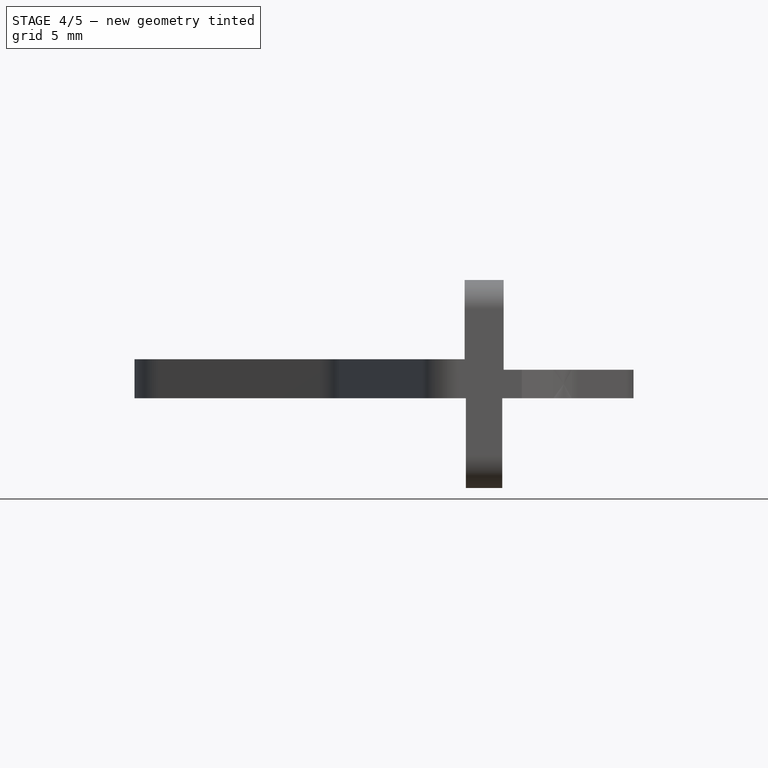
[diagram: stage 4 of 5 — front view after this stage's code; geometry added in this stage tinted green]
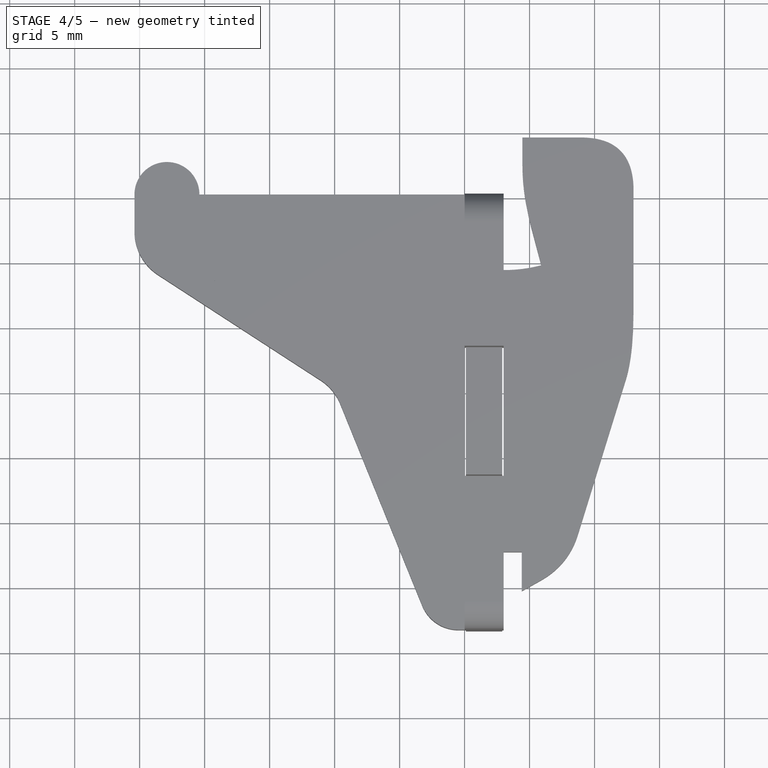
[diagram: stage 4 of 5 — top view after this stage's code; geometry added in this stage tinted green]
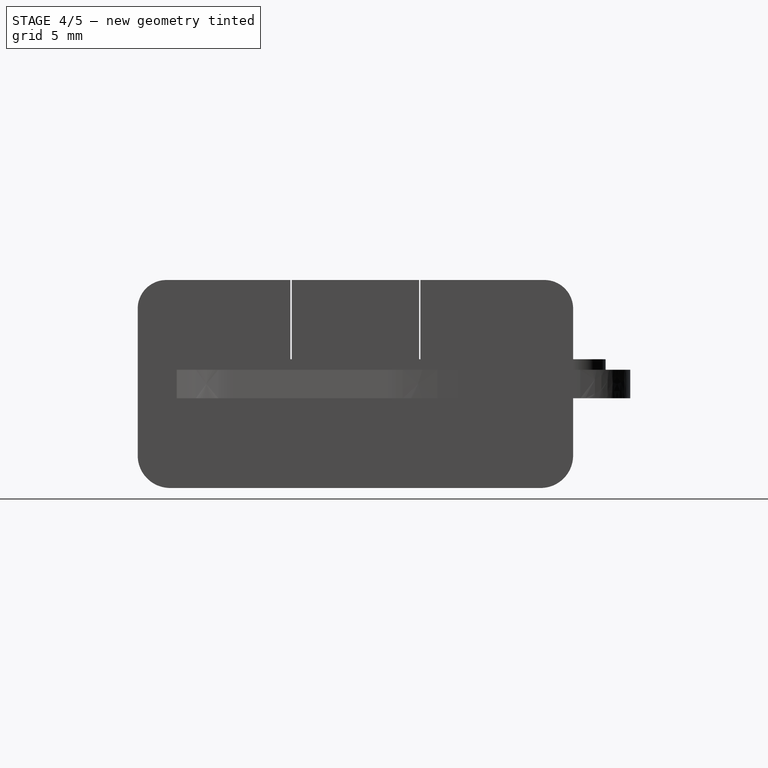
[diagram: stage 4 of 5 — right view after this stage's code; geometry added in this stage tinted green]
FEATURE [Sketcher::SketchObject] Sketch  label="Heavy Clip Base Pad Sketch"
  FullyConstrained = false
  MapMode = 5
  Support = -> [XY_Plane]
  sketch-geometry (57):
    g0: LineSegment StartX=0 StartY=5.15 StartZ=0 EndX=3 EndY=5.15 EndZ=0
    g1: LineSegment StartX=3 StartY=5.15 StartZ=0 EndX=3 EndY=-0.65 EndZ=0
    g2: LineSegment StartX=0 StartY=5.15 StartZ=0 EndX=0 EndY=0 EndZ=0
    g3: LineSegment StartX=0 StartY=-28.35 StartZ=0 EndX=3 EndY=-28.35 EndZ=0
    g4: LineSegment StartX=3 StartY=-28.35 StartZ=0 EndX=3 EndY=-22.35 EndZ=0
    g5: LineSegment StartX=3 StartY=-22.35 StartZ=0 EndX=3 EndY=-16.6 EndZ=0
    g6: LineSegment StartX=3 StartY=-0.65 StartZ=0 EndX=3 EndY=-6.6 EndZ=0
    g7: LineSegment StartX=3 StartY=-16.6 StartZ=0 EndX=3 EndY=-6.6 EndZ=0
    g8: LineSegment StartX=3 StartY=-6.6 StartZ=0 EndX=0 EndY=-6.6 EndZ=0
    g9: LineSegment StartX=0 StartY=0 StartZ=0 EndX=0 EndY=-6.6 EndZ=0
    g10: LineSegment StartX=3 StartY=-16.6 StartZ=0 EndX=0 EndY=-16.6 EndZ=0
    g11: LineSegment StartX=0 StartY=-6.6 StartZ=0 EndX=0 EndY=-16.6 EndZ=0
    g12: LineSegment StartX=0 StartY=-16.6 StartZ=0 EndX=0 EndY=-28.35 EndZ=0
    g13: LineSegment StartX=3 StartY=-22.35 StartZ=0 EndX=4.4 EndY=-22.35 EndZ=0
    g14: LineSegment StartX=4.4 StartY=-22.35 StartZ=0 EndX=4.4 EndY=-25.35 EndZ=0
    g15: ArcOfCircle CenterX=3.07082 CenterY=10.3448 CenterZ=0 NormalX=0 NormalY=0 NormalZ=1 AngleXU=0 Radius=10.995 StartAngle=4.70595 EndAngle=4.97263
    g16: LineSegment StartX=4.45 StartY=9.55 StartZ=0 EndX=4.45 EndY=7.45 EndZ=0
    g17: LineSegment StartX=4.45 StartY=9.55 StartZ=0 EndX=8.95 EndY=9.55 EndZ=0
    g18: LineSegment StartX=13 StartY=5.5 StartZ=0 EndX=13 EndY=-3.7 EndZ=0
    g19: LineSegment StartX=5.9 StartY=-0.28 StartZ=0 EndX=5.9 EndY=-0.65 EndZ=0
    g20: LineSegment StartX=3 StartY=-0.65 StartZ=0 EndX=5.9 EndY=-0.65 EndZ=0
    g21-g24: Circle x4 (B-spline internal-alignment scaffolding for g25; pole/knot coordinates omitted)
    g25: BSplineCurve PolesCount=4 KnotsCount=2 Degree=3 IsPeriodic=0
    g26: GeomPoint X=5.9 Y=-0.28 Z=0
    g27: GeomPoint X=4.45 Y=7.45 Z=0
    g28: LineSegment StartX=4.45 StartY=7.45 StartZ=0 EndX=4.45 EndY=4.82028 EndZ=0
    g29: LineSegment StartX=12.4122 StartY=-9.06773 StartZ=0 EndX=8.72 EndY=-21.01 EndZ=0
    g30: Circle CenterX=8.95 CenterY=9.55 CenterZ=0 NormalX=0 NormalY=0 NormalZ=1 AngleXU=0 Radius=1
    g31: Circle CenterX=13 CenterY=9.55 CenterZ=0 NormalX=0 NormalY=0 NormalZ=1 AngleXU=0 Radius=1
    g32: Circle CenterX=13 CenterY=5.5 CenterZ=0 NormalX=0 NormalY=0 NormalZ=1 AngleXU=0 Radius=1
    g33: BSplineCurve PolesCount=3 KnotsCount=2 Degree=2 IsPeriodic=0
    g34: GeomPoint X=8.95 Y=9.55 Z=0
    g35: GeomPoint X=13 Y=5.5 Z=0
    g36: Circle CenterX=13 CenterY=-3.7 CenterZ=0 NormalX=0 NormalY=0 NormalZ=1 AngleXU=0 Radius=1
    g37: Circle CenterX=13 CenterY=-7.16645 CenterZ=0 NormalX=0 NormalY=0 NormalZ=1 AngleXU=0 Radius=1
    g38: Circle CenterX=12.4122 CenterY=-9.06773 CenterZ=0 NormalX=0 NormalY=0 NormalZ=1 AngleXU=0 Radius=1
    g39: BSplineCurve PolesCount=3 KnotsCount=2 Degree=2 IsPeriodic=0
    g40: GeomPoint X=13 Y=-3.7 Z=0
    g41: GeomPoint X=12.4122 Y=-9.06773 Z=0
    g42: LineSegment StartX=4.4 StartY=-25.35 StartZ=0 EndX=5.8162 EndY=-24.5634 EndZ=0
    g43: Circle CenterX=5.8162 CenterY=-24.5634 CenterZ=0 NormalX=0 NormalY=0 NormalZ=1 AngleXU=0 Radius=1
    g44: Circle CenterX=7.99569 CenterY=-23.3528 CenterZ=0 NormalX=0 NormalY=0 NormalZ=1 AngleXU=0 Radius=1
    g45: Circle CenterX=8.72 CenterY=-21.01 CenterZ=0 NormalX=0 NormalY=0 NormalZ=1 AngleXU=0 Radius=1
    g46: BSplineCurve PolesCount=3 KnotsCount=2 Degree=2 IsPeriodic=0
    g47: GeomPoint X=5.8162 Y=-24.5634 Z=0
    g48: GeomPoint X=8.72 Y=-21.01 Z=0
    g49: LineSegment StartX=8.72 StartY=-21.01 StartZ=0 EndX=7.99569 EndY=-23.3528 EndZ=0
    g50: LineSegment StartX=7.99569 StartY=-23.3528 StartZ=0 EndX=5.8162 EndY=-24.5634 EndZ=0
    g51: LineSegment StartX=12.4122 StartY=-9.06773 StartZ=0 EndX=13 EndY=-7.16645 EndZ=0
    g52: LineSegment StartX=13 StartY=-3.7 StartZ=0 EndX=13 EndY=-7.16645 EndZ=0
    g53: LineSegment StartX=8.95 StartY=9.55 StartZ=0 EndX=13 EndY=9.55 EndZ=0
    g54: LineSegment StartX=13 StartY=5.5 StartZ=0 EndX=13 EndY=9.55 EndZ=0
    g55: LineSegment StartX=4.4 StartY=-22.35 StartZ=0 EndX=4.4 EndY=-21.01 EndZ=0
    g56: LineSegment StartX=4.4 StartY=-21.01 StartZ=0 EndX=8.72 EndY=-21.01 EndZ=0
  constraints (134):
    c: PointOnObject(g0,g-2)
    c: Horizontal(g0)
    c: Coincident(g1,g0)
    c: Vertical(g1)
    c: Coincident(g2,g0)
    c: Coincident(g2,g-1)
    c: PointOnObject(g3,g-2)
    c: DistanceY(g2,g2) = 5.15
    c: Horizontal(g3)
    c: Coincident(g4,g3)
    c: Vertical(g4)
    c: Coincident(g5,g4)
    c: Vertical(g5)
    c: Coincident(g6,g1)
    c: Vertical(g6)
    c: Coincident(g7,g5)
    c: Coincident(g7,g6)
    c: Vertical(g7)
    c: Coincident(g8,g7)
    c: PointOnObject(g8,g-2)
    c: Horizontal(g8)
    c: Coincident(g9,g2)
    c: Coincident(g9,g8)
    c: DistanceX(g0,g0) = 3
    c: Coincident(g10,g7)
    c: PointOnObject(g10,g-2)
    c: Horizontal(g10)
    c: Coincident(g11,g8)
    c: Coincident(g11,g10)
    c: Coincident(g12,g10)
    c: Coincident(g12,g3)
    c: DistanceY(g9,g9) = 6.6
    c: DistanceY(g11,g11) = 10
    c: DistanceY(g12,g12) = 11.75
    c: DistanceY(g5,g5) = 5.75
    c: Coincident(g13,g4)
    c: Horizontal(g13)
    c: Coincident(g14,g13)
    c: Vertical(g14)
    c: DistanceY(g1,g0) = 5.8
    c: DistanceX(g13,g13) = 1.4
    c: DistanceY(g14,g14) = 3
    c: Coincident(g15,g1)
    c: Vertical(g16)
    c: Coincident(g17,g16)
    c: Horizontal(g17)
    c: Vertical(g18)
    c: Coincident(g19,g15)
    c: Vertical(g19)
    c: Coincident(g20,g1)
    c: Coincident(g20,g19)
    c: Horizontal(g20)
    c: DistanceX(g20,g20) = 2.9
    c: Weight(g21) = 1
    c: Coincident(g25,g15)
    c: Equal(g21,g22)
    c: Equal(g21,g23)
    c: Equal(g21,g24)
    c: Coincident(g25,g16)
    c: InternalAlignment(g21-g24 -> g25) x4
    c: InternalAlignment(g26,g25)
    c: InternalAlignment(g27,g25)
    c: Coincident(g28,g16)
    c: Coincident(g28,g23)
    c: Vertical(g28)
    c: Weight(g30) = 1
    c: Coincident(g33,g17)
    c: Equal(g30,g31)
    c: Equal(g30,g32)
    c: Coincident(g33,g18)
    c: InternalAlignment(g30,g33)
    c: InternalAlignment(g31,g33)
    c: InternalAlignment(g32,g33)
    c: InternalAlignment(g34,g33)
    c: InternalAlignment(g35,g33)
    c: Weight(g36) = 1
    c: Coincident(g39,g18)
    c: Equal(g36,g37)
    c: Equal(g36,g38)
    c: Coincident(g39,g29)
    c: InternalAlignment(g36,g39)
    c: InternalAlignment(g37,g39)
    c: InternalAlignment(g38,g39)
    c: InternalAlignment(g40,g39)
    c: InternalAlignment(g41,g39)
    c: Coincident(g42,g14)
    c: Weight(g43) = 1
    c: Coincident(g46,g42)
    c: Equal(g43,g44)
    c: Equal(g43,g45)
    c: Coincident(g46,g29)
    c: InternalAlignment(g43,g46)
    c: InternalAlignment(g44,g46)
    c: InternalAlignment(g45,g46)
    c: InternalAlignment(g47,g46)
    c: InternalAlignment(g48,g46)
    c: Coincident(g49,g29)
    c: Coincident(g49,g44)
    c: Coincident(g50,g44)
    c: Coincident(g50,g42)
    c: Parallel(g50,g42)
    c: Parallel(g49,g29)
    c: Angle(g42,g14) = 1.06378
    c: Distance(g42) = 1.62
    c: Coincident(g51,g29)
    c: Coincident(g51,g37)
    c: Coincident(g52,g18)
    c: Coincident(g52,g37)
    c: Vertical(g52)
    c: Parallel(g51,g29)
    c: Coincident(g53,g17)
    c: Coincident(g53,g31)
    c: Horizontal(g53)
    c: Coincident(g54,g18)
    c: Coincident(g54,g31)
    c: Vertical(g54)
    c: DistanceY(g16,g16) = 2.1
    c: DistanceX(g17,g17) = 4.5
    c: DistanceX(g17,g31) = 4.05
    c: DistanceX(g0,g16) = 1.45
    c: DistanceY(g19,g19) = 0.37
    c: Equal(g54,g53)
    c: DistanceY(g0,g16) = 2.3
    c: Diameter(g15) = 21.99
    c: DistanceY(g18,g18) = 9.2
    c: Distance(g29) = 12.5
    c: Coincident(g55,g13)
    c: Vertical(g55)
    c: Coincident(g56,g55)
    c: Coincident(g56,g29)
    c: Horizontal(g56)
    c: DistanceX(g56,g56) = 4.32
    c: DistanceY(g55,g55) = 1.34
    c: Angle(g29,g56) = 1.87064
FEATURE [PartDesign::Pad] Pad  label="Heavy Clip Base Pad"
  Direction = (0,0,1)
  Length = 2.2
  Length2 = 10
  Profile = -> Sketch
  ReferenceAxis = -> Sketch [N_Axis]
  Type = 0
FEATURE [Sketcher::SketchObject] Sketch008  label="Light Clip Ext Pad"
  ExternalGeometry = -> [Sketch006]
  FullyConstrained = true
  MapMode = 5
  Support = -> [XY_Plane002]
  expr: Constraints[12] = <<$params>>.ext_hang_diam
  expr: Constraints[4] = <<$params>>.ext_length
  sketch-geometry (11):
    g0: LineSegment StartX=0 StartY=5.15 StartZ=0 EndX=-20.4 EndY=5.15 EndZ=0
    g1: LineSegment StartX=-20.4 StartY=5.15 StartZ=0 EndX=-20.4 EndY=-1.17643 EndZ=0
    g2: ArcOfCircle CenterX=-22.9 CenterY=5.15 CenterZ=0 NormalX=0 NormalY=0 NormalZ=1 AngleXU=0 Radius=2.5 StartAngle=0 EndAngle=3.14159
    g3: LineSegment StartX=-25.4 StartY=5.15 StartZ=0 EndX=-22.9 EndY=5.15 EndZ=0
    g4: LineSegment StartX=-22.9 StartY=5.15 StartZ=0 EndX=-20.4 EndY=5.15 EndZ=0
    g5: LineSegment StartX=-25.4 StartY=5.15 StartZ=0 EndX=-25.4 EndY=0.15 EndZ=0
    g6: LineSegment StartX=-20.4 StartY=-1.17643 StartZ=0 EndX=-25.4 EndY=0.15 EndZ=0
    g7: LineSegment StartX=0 StartY=5.15 StartZ=0 EndX=0 EndY=-28.35 EndZ=0
    g8: LineSegment StartX=0 StartY=-28.35 StartZ=0 EndX=-2 EndY=-28.35 EndZ=0
    g9: LineSegment StartX=-2 StartY=-28.35 StartZ=0 EndX=-6.42553 EndY=-4.88366 EndZ=0
    g10: LineSegment StartX=-6.42553 StartY=-4.88366 StartZ=0 EndX=-20.4 EndY=-1.17643 EndZ=0
  constraints (29):
    c: Coincident(g0,g-3)
    c: Horizontal(g0)
    c: Coincident(g1,g0)
    c: Vertical(g1)
    c: DistanceX(g0,g0) = 20.4
    c: Coincident(g2,g0)
    c: Coincident(g3,g2)
    c: Coincident(g3,g2)
    c: Horizontal(g3)
    c: Coincident(g4,g2)
    c: Coincident(g4,g0)
    c: Horizontal(g4)
    c: DistanceX(g2,g0) = 5
    c: Coincident(g5,g2)
    c: Vertical(g5)
    c: Coincident(g6,g1)
    c: Coincident(g5,g6)
    c: DistanceY(g5,g5) = 5
    c: Coincident(g7,g0)
    c: Coincident(g8,g7)
    c: Horizontal(g8)
    c: Coincident(g7,g-4)
    c: Coincident(g9,g8)
    c: Coincident(g10,g9)
    c: Coincident(g10,g6)
    c: DistanceX(g8,g8) = 2
    c: Parallel(g10,g6)
    c: Angle(g8,g9) = 1.7572
    c: Distance(g9) = 23.88
FEATURE [PartDesign::Pad] Pad008  label="Light Clip Ext"
  BaseFeature = -> Fillet004
  Direction = (0,0,1)
  Length = 3
  Length2 = 10
  Profile = -> Sketch008
  ReferenceAxis = -> Sketch008 [N_Axis]
  Refine = true
  Type = 0
FEATURE [PartDesign::Fillet] Fillet005  label="Light Clip Ext Fillet 1"
  Base = -> Pad008 [Edge29]
  BaseFeature = -> Pad008
  Radius = 2
  SupportTransform = false
  UseAllEdges = false
FEATURE [PartDesign::Fillet] Fillet006  label="Light Clip Ext Fillet 2"
  Base = -> Fillet005 [Edge13,Edge16]
  BaseFeature = -> Fillet005
  Radius = 3
  SupportTransform = false
  UseAllEdges = false
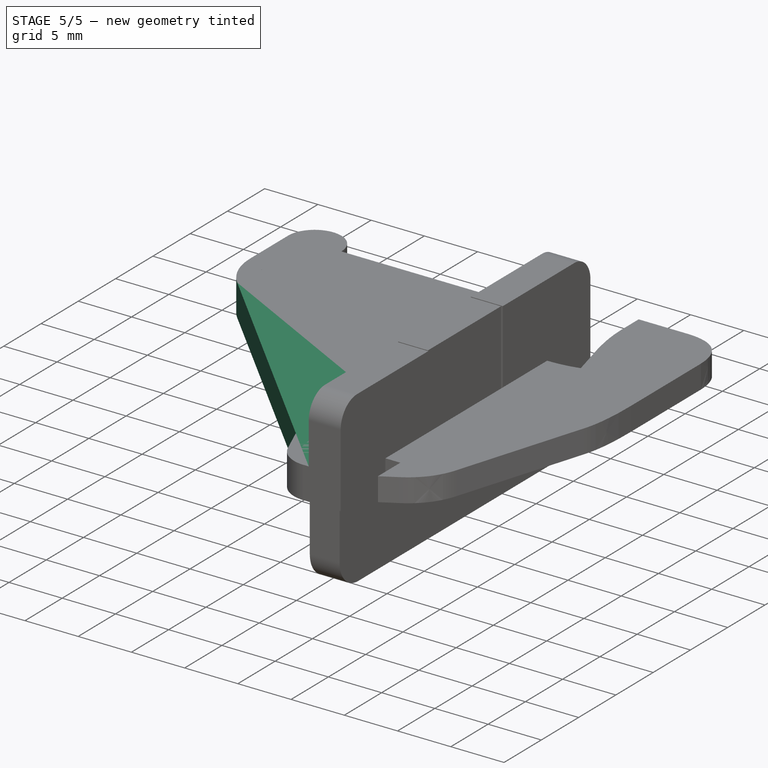
[diagram: stage 5 of 5 — iso view after this stage's code; geometry added in this stage tinted green]
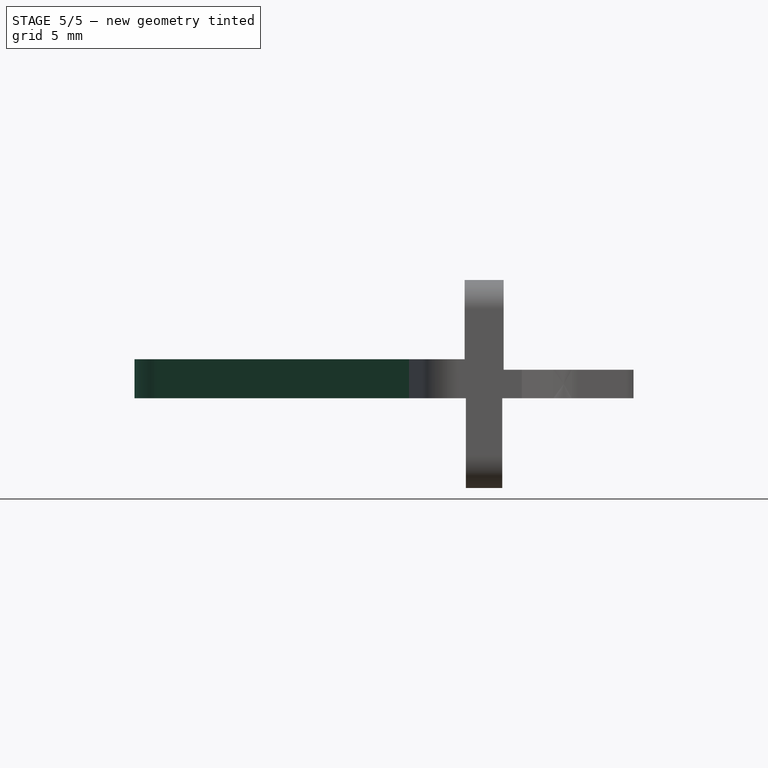
[diagram: stage 5 of 5 — front view after this stage's code; geometry added in this stage tinted green]
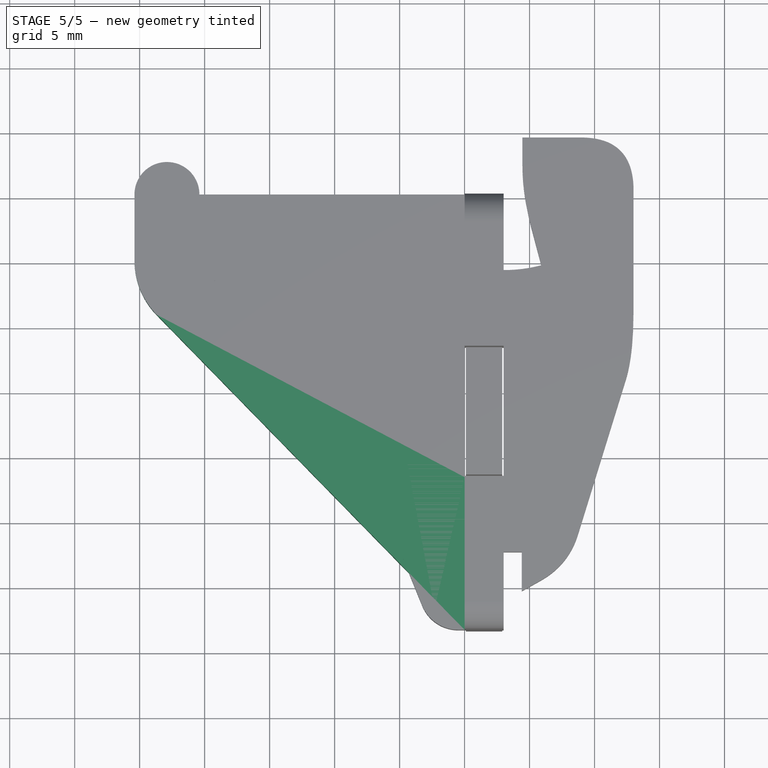
[diagram: stage 5 of 5 — top view after this stage's code; geometry added in this stage tinted green]
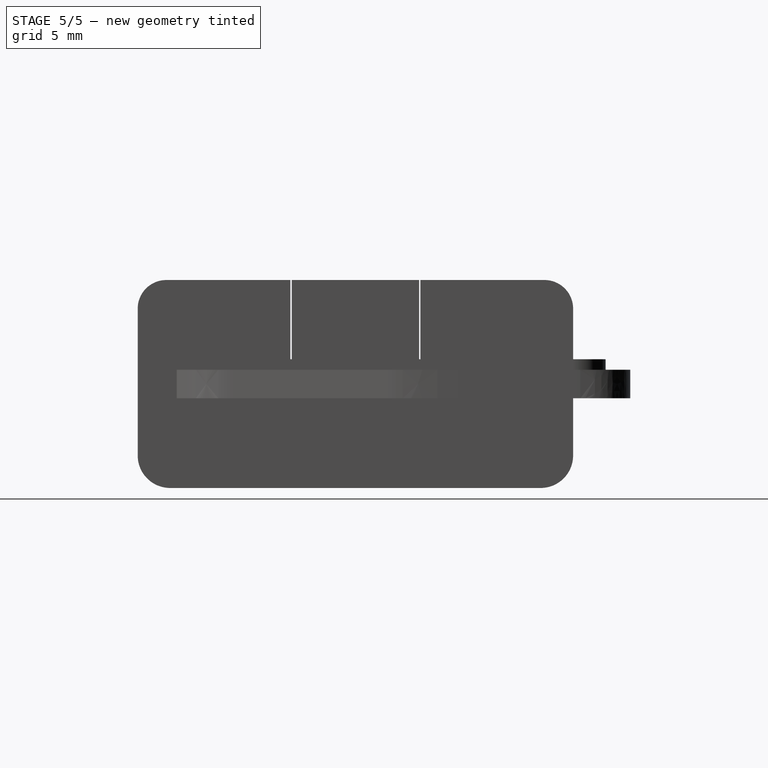
[diagram: stage 5 of 5 — right view after this stage's code; geometry added in this stage tinted green]
FEATURE [Sketcher::SketchObject] Sketch001  label="Heavy Clip Top Pad Sketch"
  ExternalGeometry = -> [Sketch]
  FullyConstrained = true
  MapMode = 5
  Placement = pos=(0,0,2.2) rot=(0,0,1;0rad)
  Support = -> [Pad]
  sketch-geometry (8):
    g0: LineSegment StartX=3 StartY=-28.35 StartZ=0 EndX=0 EndY=-28.35 EndZ=0
    g1: LineSegment StartX=0 StartY=-28.35 StartZ=0 EndX=0 EndY=-16.6 EndZ=0
    g2: LineSegment StartX=0 StartY=-16.6 StartZ=0 EndX=3 EndY=-16.6 EndZ=0
    g3: LineSegment StartX=3 StartY=-16.6 StartZ=0 EndX=3 EndY=-28.35 EndZ=0
    g4: LineSegment StartX=3 StartY=-6.6 StartZ=0 EndX=0 EndY=-6.6 EndZ=0
    g5: LineSegment StartX=0 StartY=-6.6 StartZ=0 EndX=0 EndY=5.15 EndZ=0
    g6: LineSegment StartX=0 StartY=5.15 StartZ=0 EndX=3 EndY=5.15 EndZ=0
    g7: LineSegment StartX=3 StartY=5.15 StartZ=0 EndX=3 EndY=-6.6 EndZ=0
  constraints (20):
    c: Coincident(g0,g1)
    c: Coincident(g1,g2)
    c: Coincident(g2,g3)
    c: Coincident(g3,g0)
    c: Horizontal(g0)
    c: Horizontal(g2)
    c: Vertical(g1)
    c: Vertical(g3)
    c: Coincident(g0,g-6)
    c: Coincident(g1,g-5)
    c: Coincident(g4,g5)
    c: Coincident(g5,g6)
    c: Coincident(g6,g7)
    c: Coincident(g7,g4)
    c: Horizontal(g4)
    c: Horizontal(g6)
    c: Vertical(g5)
    c: Vertical(g7)
    c: Coincident(g4,g-3)
    c: Coincident(g5,g-4)
FEATURE [PartDesign::Pad] Pad001  label="Heavy Clip Top Pad"
  BaseFeature = -> Pad
  Direction = (0,0,1)
  Length = 6.9
  Length2 = 10
  Profile = -> Sketch001
  ReferenceAxis = -> Sketch001 [N_Axis]
  Type = 0
FEATURE [PartDesign::Fillet] Fillet  label="Heavy Clip Top Pad Fillet"
  Base = -> Pad001 [Edge84,Edge81]
  BaseFeature = -> Pad001
  Radius = 2.2
  SupportTransform = false
  UseAllEdges = false
FEATURE [Sketcher::SketchObject] Sketch002  label="Clip Ext Pad Sketch"
  ExternalGeometry = -> [Sketch]
  FullyConstrained = true
  MapMode = 5
  Support = -> [XY_Plane]
  expr: Constraints[14] = <<$params>>.ext_hang_diam
  expr: Constraints[6] = <<$params>>.ext_length
  sketch-geometry (9):
    g0: LineSegment StartX=0 StartY=5.15 StartZ=0 EndX=-20.4 EndY=5.15 EndZ=0
    g1: LineSegment StartX=-20.4 StartY=5.15 StartZ=0 EndX=-20.4 EndY=-7.46811 EndZ=0
    g2: LineSegment StartX=-20.4 StartY=-7.46811 StartZ=0 EndX=0 EndY=-28.35 EndZ=0
    g3: ArcOfCircle CenterX=-22.9 CenterY=5.15 CenterZ=0 NormalX=0 NormalY=0 NormalZ=1 AngleXU=0 Radius=2.5 StartAngle=1e-16 EndAngle=3.14159
    g4: LineSegment StartX=-25.4 StartY=5.15 StartZ=0 EndX=-22.9 EndY=5.15 EndZ=0
    g5: LineSegment StartX=-22.9 StartY=5.15 StartZ=0 EndX=-20.4 EndY=5.15 EndZ=0
    g6: LineSegment StartX=-25.4 StartY=5.15 StartZ=0 EndX=-25.4 EndY=-2.35 EndZ=0
    g7: LineSegment StartX=-20.4 StartY=-7.46811 StartZ=0 EndX=-25.4 EndY=-2.35 EndZ=0
    g8: LineSegment StartX=0 StartY=5.15 StartZ=0 EndX=0 EndY=-28.35 EndZ=0
  constraints (23):
    c: Coincident(g0,g-3)
    c: Horizontal(g0)
    c: Coincident(g1,g0)
    c: Vertical(g1)
    c: Coincident(g2,g1)
    c: Coincident(g2,g-4)
    c: DistanceX(g0,g0) = 20.4
    c: Coincident(g3,g0)
    c: Coincident(g4,g3)
    c: Coincident(g4,g3)
    c: Horizontal(g4)
    c: Coincident(g5,g3)
    c: Coincident(g5,g0)
    c: Horizontal(g5)
    c: DistanceX(g3,g0) = 5
    c: Coincident(g6,g3)
    c: Vertical(g6)
    c: Coincident(g7,g1)
    c: Parallel(g2,g7)
    c: Coincident(g6,g7)
    c: DistanceY(g6,g6) = 7.5
    c: Coincident(g8,g0)
    c: Coincident(g8,g2)
FEATURE [PartDesign::Pad] Pad002  label="Heavy Clip Ext Pad"
  BaseFeature = -> Fillet
  Direction = (0,0,1)
  Length = 3
  Length2 = 10
  Profile = -> Sketch002
  ReferenceAxis = -> Sketch002 [N_Axis]
  Refine = true
  Type = 0
FEATURE [PartDesign::Fillet] Fillet001  label="Heavy Clip Ext Pad Fillet"
  Base = -> Pad002 [Edge23]
  BaseFeature = -> Pad002
  Radius = 6
  SupportTransform = false
  UseAllEdges = false
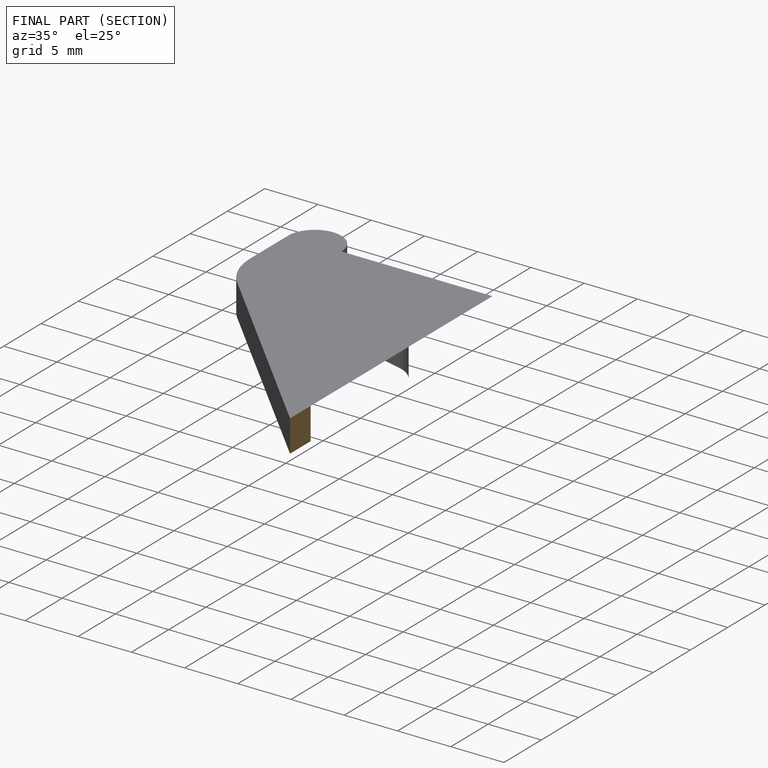
[diagram: finished part — half-section view (interior)]
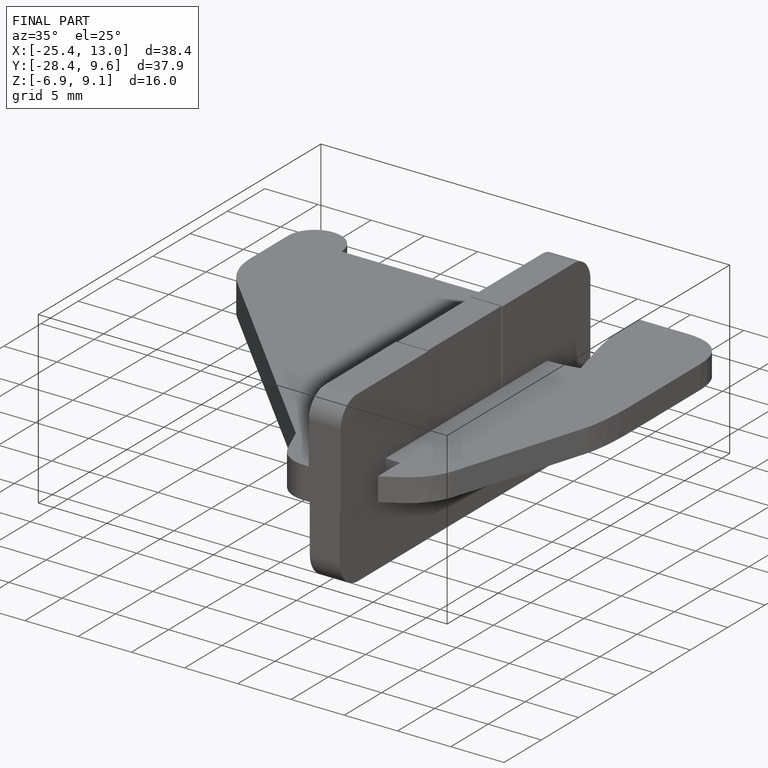
[diagram: finished part — iso view with bounding-box wireframe]
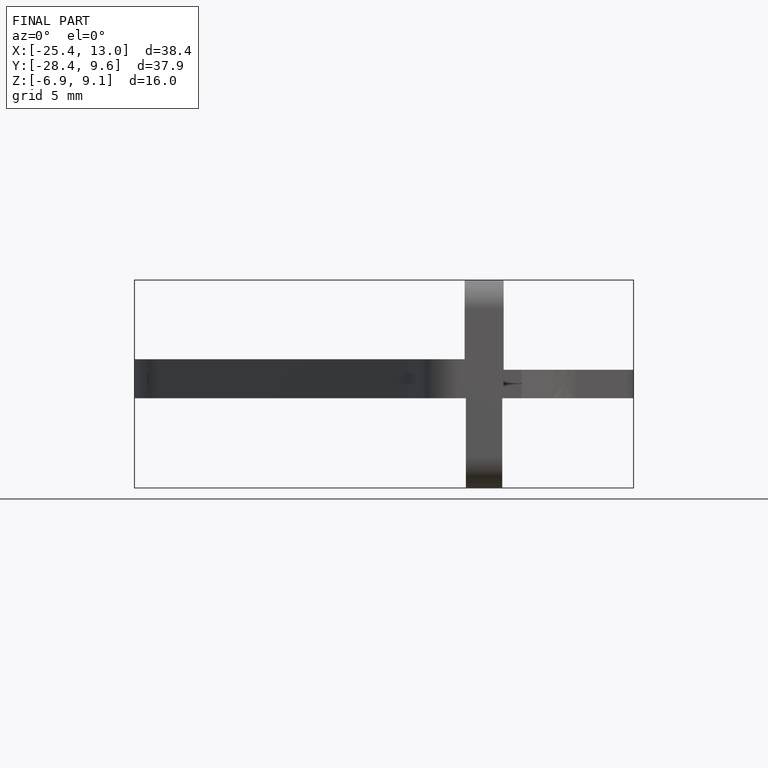
[diagram: finished part — front view with bounding-box wireframe]
